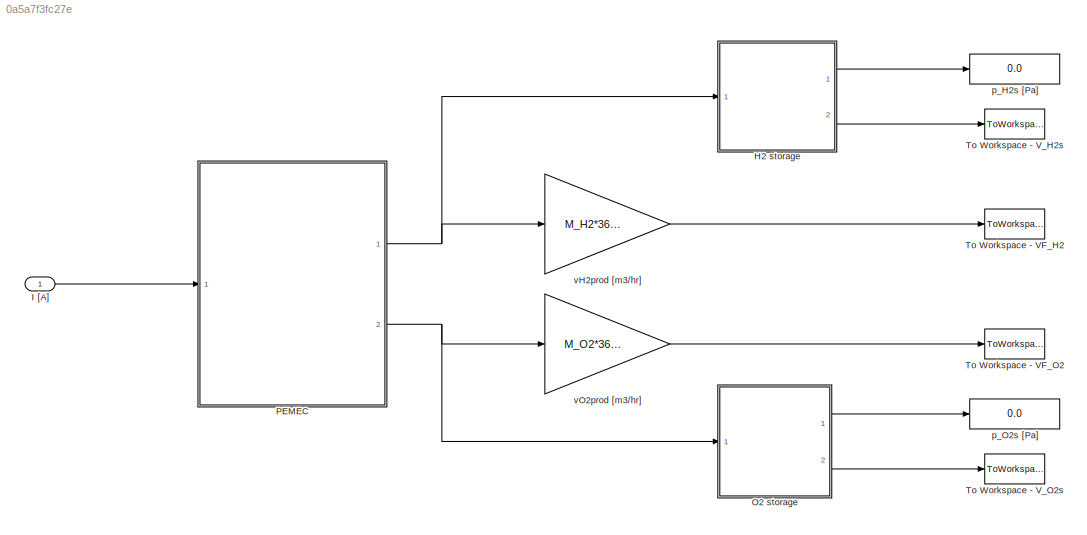
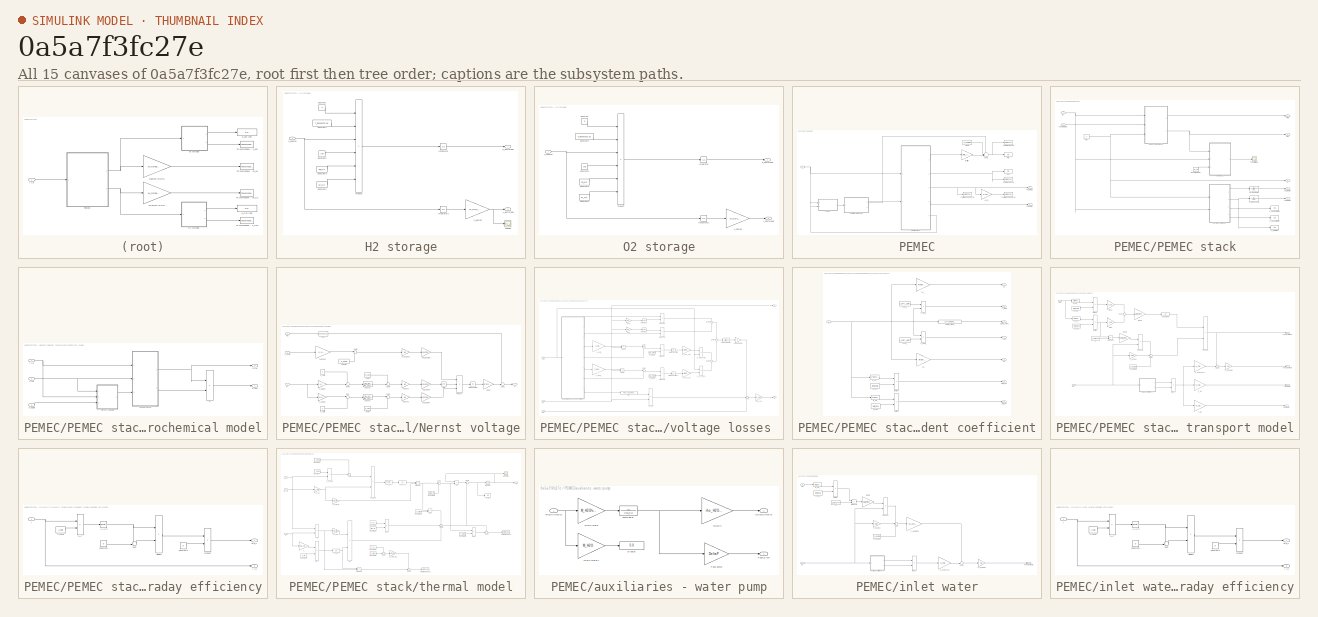
[diagram: thumbnail index - all 15 canvases of the model, root first then tree order]
MODEL slx_0a5a7f3fc27e
KIND model
CONFIG AbsTol = auto
CONFIG FixedStep = auto
CONFIG MaxStep = 1
CONFIG MinStep = 0.0001
CONFIG RelTol = 1e-3
CONFIG SampleTimeConstraint = Unconstrained
CONFIG Solver = VariableStepAuto
CONFIG SolverMode = SingleTasking
CONFIG SolverName = VariableStepAuto
CONFIG StartTime = 0.0
CONFIG StopTime = 1000
BLOCK [SubSystem] H2 storage
  Ports = [1, 2]
  RequestExecContextInheritance = off
  Variant = off
BLOCK [Constant] H2 storage/Constant
  Value = R
BLOCK [Constant] H2 storage/Constant1
  Value = T_amb+273.15
BLOCK [Constant] H2 storage/Constant2
  Value = zeta
BLOCK [Constant] H2 storage/Constant3
  Value = VS_H2
BLOCK [Constant] H2 storage/Constant4
  Value = M_H2
BLOCK [Integrator] H2 storage/Integrator
  InitialCondition = 101325
  Ports = [1, 1]
BLOCK [Integrator] H2 storage/Integrator1
  Ports = [1, 1]
BLOCK [Product] H2 storage/Product
  InputSameDT = off
  Inputs = ****//
  OutDataTypeStr = Inherit: Inherit via internal rule
  Ports = [6, 1]
  RndMeth = Floor
  SaturateOnIntegerOverflow = off
BLOCK [Scope] H2 storage/Scope3
  Ports = [1]
  ScopeSpecificationString = Simulink.scopes.TimeScopeBlockCfg('CurrentConfiguration', extmgr.ConfigurationSet(extmgr.Configuration('Core','General UI',true),extmgr.Configuration('Core','Source UI',true),extmgr.Configuration('Sources','WiredSimulink',true,'DataLoggingVariableName','ScopeData1'),extmgr.Configuration('Visuals','Time Domain',true,'SerializedDisplays',{struct('MinYLimReal','-0.02021','MaxYLimReal','0.18191','YLab...<+1421ch>
BLOCK [Gain] H2 storage/V_H2prod
  Gain = M_H2/v_H240
  OutDataTypeStr = Inherit: Inherit via internal rule
  ParamDataTypeStr = Inherit: Inherit via internal rule
  SaturateOnIntegerOverflow = off
BLOCK [Outport] H2 storage/V_H2storage
  IconDisplay = Port number
  Port = 2
BLOCK [Inport] H2 storage/n_H2prod
  IconDisplay = Port number
BLOCK [Outport] H2 storage/p_H2storage
  IconDisplay = Port number
BLOCK [Inport] I [A]
  IconDisplay = Port number
BLOCK [SubSystem] O2 storage
  Ports = [1, 2]
  RequestExecContextInheritance = off
  Variant = off
BLOCK [Constant] O2 storage/Constant
  Value = R
BLOCK [Constant] O2 storage/Constant1
  Value = T_amb+273.15
BLOCK [Constant] O2 storage/Constant2
  Value = zeta
BLOCK [Constant] O2 storage/Constant3
  Value = VS_O2
BLOCK [Constant] O2 storage/Constant4
  Value = M_O2
BLOCK [Integrator] O2 storage/Integrator
  InitialCondition = 101325
  Ports = [1, 1]
BLOCK [Integrator] O2 storage/Integrator1
  Ports = [1, 1]
BLOCK [Product] O2 storage/Product
  InputSameDT = off
  Inputs = ****//
  OutDataTypeStr = Inherit: Inherit via internal rule
  Ports = [6, 1]
  RndMeth = Floor
  SaturateOnIntegerOverflow = off
BLOCK [Gain] O2 storage/V_O2prod
  Gain = M_O2/v_O240
  OutDataTypeStr = Inherit: Inherit via internal rule
  ParamDataTypeStr = Inherit: Inherit via internal rule
  SaturateOnIntegerOverflow = off
BLOCK [Outport] O2 storage/V_O2storage
  IconDisplay = Port number
  Port = 2
BLOCK [Inport] O2 storage/n_O2prod
  IconDisplay = Port number
BLOCK [Outport] O2 storage/p_O2storage
  IconDisplay = Port number
BLOCK [SubSystem] PEMEC
  Ports = [1, 2]
  RequestExecContextInheritance = off
  Variant = off
BLOCK [Inport] PEMEC/I
  IconDisplay = Port number
BLOCK [Display] PEMEC/P [W]
  Decimation = 1
  Ports = [1]
BLOCK [Constant] PEMEC/PBOP
  Value = P_gamma
BLOCK [SubSystem] PEMEC/PEMEC stack
  Ports = [2, 5]
  RequestExecContextInheritance = off
  Variant = off
BLOCK [Inport] PEMEC/PEMEC stack/I [A]
  IconDisplay = Port number
BLOCK [Outport] PEMEC/PEMEC stack/P [W]
  IconDisplay = Port number
BLOCK [Outport] PEMEC/PEMEC stack/T
  IconDisplay = Port number
  Port = 5
BLOCK [Constant] PEMEC/PEMEC stack/T [K]
  Value = T
BLOCK [Scope] PEMEC/PEMEC stack/T evolution K
  Ports = [1]
  ScopeSpecificationString = Simulink.scopes.TimeScopeBlockCfg('CurrentConfiguration', extmgr.ConfigurationSet(extmgr.Configuration('Core','General UI',true),extmgr.Configuration('Core','Source UI',true),extmgr.Configuration('Sources','WiredSimulink',true,'DataLoggingVariableName','ScopeData1'),extmgr.Configuration('Visuals','Time Domain',true,'SerializedDisplays',{struct('MinYLimReal','19.62056','MaxYLimReal','73.41498','YLa...<+1378ch>
BLOCK [Outport] PEMEC/PEMEC stack/V [V]
  IconDisplay = Port number
  Port = 2
BLOCK [SubSystem] PEMEC/PEMEC stack/electrochemical model
  Ports = [3, 2]
  RequestExecContextInheritance = off
  Variant = off
BLOCK [Inport] PEMEC/PEMEC stack/electrochemical model/I [A]
  IconDisplay = Port number
BLOCK [SubSystem] PEMEC/PEMEC stack/electrochemical model/Nernst voltage
  Ports = [3, 1]
  RequestExecContextInheritance = off
  Variant = off
BLOCK [Outport] PEMEC/PEMEC stack/electrochemical model/Nernst voltage/E
  IconDisplay = Port number
BLOCK [Fcn] PEMEC/PEMEC stack/electrochemical model/Nernst voltage/E0(T)
  Expr = 1.5184-1.5421e-03*u+9.523e-05*u* log(u)+9.84e-08*u^2
BLOCK [Inport] PEMEC/PEMEC stack/electrochemical model/Nernst voltage/I [A]
  IconDisplay = Port number
  Port = 2
BLOCK [Math] PEMEC/PEMEC stack/electrochemical model/Nernst voltage/Math Function
  Operator = log
  Ports = [1, 1]
BLOCK [Product] PEMEC/PEMEC stack/electrochemical model/Nernst voltage/Product
  InputSameDT = off
  Inputs = /**
  OutDataTypeStr = Inherit: Inherit via internal rule
  Ports = [3, 1]
  RndMeth = Floor
  SaturateOnIntegerOverflow = off
BLOCK [Gain] PEMEC/PEMEC stack/electrochemical model/Nernst voltage/RT//2F
  Gain = R*T/(2*F)
  OutDataTypeStr = Inherit: Inherit via internal rule
  ParamDataTypeStr = Inherit: Inherit via internal rule
  SaturateOnIntegerOverflow = off
BLOCK [Sqrt] PEMEC/PEMEC stack/electrochemical model/Nernst voltage/Sqrt
BLOCK [Sum] PEMEC/PEMEC stack/electrochemical model/Nernst voltage/Sum
  IconShape = round
  InputSameDT = off
  Inputs = |++
  OutDataTypeStr = Inherit: Inherit via internal rule
  Ports = [2, 1]
  SaturateOnIntegerOverflow = off
BLOCK [Sum] PEMEC/PEMEC stack/electrochemical model/Nernst voltage/Sum1
  IconShape = round
  InputSameDT = off
  Inputs = ++|
  OutDataTypeStr = Inherit: Inherit via internal rule
  Ports = [2, 1]
  SaturateOnIntegerOverflow = off
BLOCK [Sum] PEMEC/PEMEC stack/electrochemical model/Nernst voltage/Sum2
  IconShape = round
  InputSameDT = off
  Inputs = ++|
  OutDataTypeStr = Inherit: Inherit via internal rule
  Ports = [2, 1]
  SaturateOnIntegerOverflow = off
BLOCK [Sum] PEMEC/PEMEC stack/electrochemical model/Nernst voltage/Sum3
  IconShape = round
  InputSameDT = off
  Inputs = ++|
  OutDataTypeStr = Inherit: Inherit via internal rule
  Ports = [2, 1]
  SaturateOnIntegerOverflow = off
BLOCK [Sum] PEMEC/PEMEC stack/electrochemical model/Nernst voltage/Sum4
  IconShape = round
  InputSameDT = off
  Inputs = |++
  OutDataTypeStr = Inherit: Inherit via internal rule
  Ports = [2, 1]
  SaturateOnIntegerOverflow = off
BLOCK [Sum] PEMEC/PEMEC stack/electrochemical model/Nernst voltage/Sum5
  IconShape = round
  InputSameDT = off
  Inputs = |++
  OutDataTypeStr = Inherit: Inherit via internal rule
  Ports = [2, 1]
  SaturateOnIntegerOverflow = off
BLOCK [Inport] PEMEC/PEMEC stack/electrochemical model/Nernst voltage/T [K]
  IconDisplay = Port number
BLOCK [Inport] PEMEC/PEMEC stack/electrochemical model/Nernst voltage/n_H2Oin
  IconDisplay = Port number
  Port = 3
BLOCK [Constant] PEMEC/PEMEC stack/electrochemical model/Nernst voltage/n_H2in
  Value = 0
BLOCK [Gain] PEMEC/PEMEC stack/electrochemical model/Nernst voltage/n_H2reac
  Gain = 2*K_r
  OutDataTypeStr = Inherit: Inherit via internal rule
  ParamDataTypeStr = Inherit: Inherit via internal rule
  SaturateOnIntegerOverflow = off
BLOCK [Constant] PEMEC/PEMEC stack/electrochemical model/Nernst voltage/n_O2in
  Value = 0
BLOCK [Gain] PEMEC/PEMEC stack/electrochemical model/Nernst voltage/n_O2reac
  Gain = K_r
  OutDataTypeStr = Inherit: Inherit via internal rule
  ParamDataTypeStr = Inherit: Inherit via internal rule
  SaturateOnIntegerOverflow = off
BLOCK [Gain] PEMEC/PEMEC stack/electrochemical model/Nernst voltage/pH2Oav [Pa]
  Gain = 101325
  OutDataTypeStr = Inherit: Inherit via internal rule
  ParamDataTypeStr = Inherit: Inherit via internal rule
  SaturateOnIntegerOverflow = off
BLOCK [Constant] PEMEC/PEMEC stack/electrochemical model/Nernst voltage/pH2Oin
  Value = p_H2O0
BLOCK [Gain] PEMEC/PEMEC stack/electrochemical model/Nernst voltage/pH2Oout
  Gain = (1 - U)/K_H2O
  OutDataTypeStr = Inherit: Inherit via internal rule
  ParamDataTypeStr = Inherit: Inherit via internal rule
  SaturateOnIntegerOverflow = off
BLOCK [Gain] PEMEC/PEMEC stack/electrochemical model/Nernst voltage/pH2av [Pa]
  Gain = 101325
  OutDataTypeStr = Inherit: Inherit via internal rule
  ParamDataTypeStr = Inherit: Inherit via internal rule
  SaturateOnIntegerOverflow = off
BLOCK [Gain] PEMEC/PEMEC stack/electrochemical model/Nernst voltage/pH2avg
  Gain = 0.5
  OutDataTypeStr = Inherit: Inherit via internal rule
  ParamDataTypeStr = Inherit: Inherit via internal rule
  SaturateOnIntegerOverflow = off
BLOCK [Constant] PEMEC/PEMEC stack/electrochemical model/Nernst voltage/pH2in
  Value = p_H20
BLOCK [TransferFcn] PEMEC/PEMEC stack/electrochemical model/Nernst voltage/pH2out
  ContinuousStateAttributes = 'p_H2'
  Denominator = [tau_H2 1]
  Numerator = [1/K_H2]
BLOCK [Gain] PEMEC/PEMEC stack/electrochemical model/Nernst voltage/pO2av [Pa]
  Gain = 101325
  OutDataTypeStr = Inherit: Inherit via internal rule
  ParamDataTypeStr = Inherit: Inherit via internal rule
  SaturateOnIntegerOverflow = off
BLOCK [Gain] PEMEC/PEMEC stack/electrochemical model/Nernst voltage/pO2avg
  Gain = 0.5
  OutDataTypeStr = Inherit: Inherit via internal rule
  ParamDataTypeStr = Inherit: Inherit via internal rule
  SaturateOnIntegerOverflow = off
BLOCK [Constant] PEMEC/PEMEC stack/electrochemical model/Nernst voltage/pO2in
  Value = p_O20
BLOCK [TransferFcn] PEMEC/PEMEC stack/electrochemical model/Nernst voltage/pO2out
  ContinuousStateAttributes = 'p_O2'
  Denominator = [tau_O2 1]
  Numerator = [1/K_O2]
BLOCK [Gain] PEMEC/PEMEC stack/electrochemical model/Nernst voltage/p_H2Oavg
  Gain = 0.5
  OutDataTypeStr = Inherit: Inherit via internal rule
  ParamDataTypeStr = Inherit: Inherit via internal rule
  SaturateOnIntegerOverflow = off
BLOCK [Product] PEMEC/PEMEC stack/electrochemical model/P
  InputSameDT = off
  OutDataTypeStr = Inherit: Inherit via internal rule
  Ports = [2, 1]
  RndMeth = Floor
  SaturateOnIntegerOverflow = off
BLOCK [Outport] PEMEC/PEMEC stack/electrochemical model/P [W]
  IconDisplay = Port number
BLOCK [Inport] PEMEC/PEMEC stack/electrochemical model/T [K]
  IconDisplay = Port number
  Port = 3
BLOCK [Outport] PEMEC/PEMEC stack/electrochemical model/V [V]
  IconDisplay = Port number
  Port = 2
BLOCK [Inport] PEMEC/PEMEC stack/electrochemical model/n_H2Oin
  IconDisplay = Port number
  Port = 2
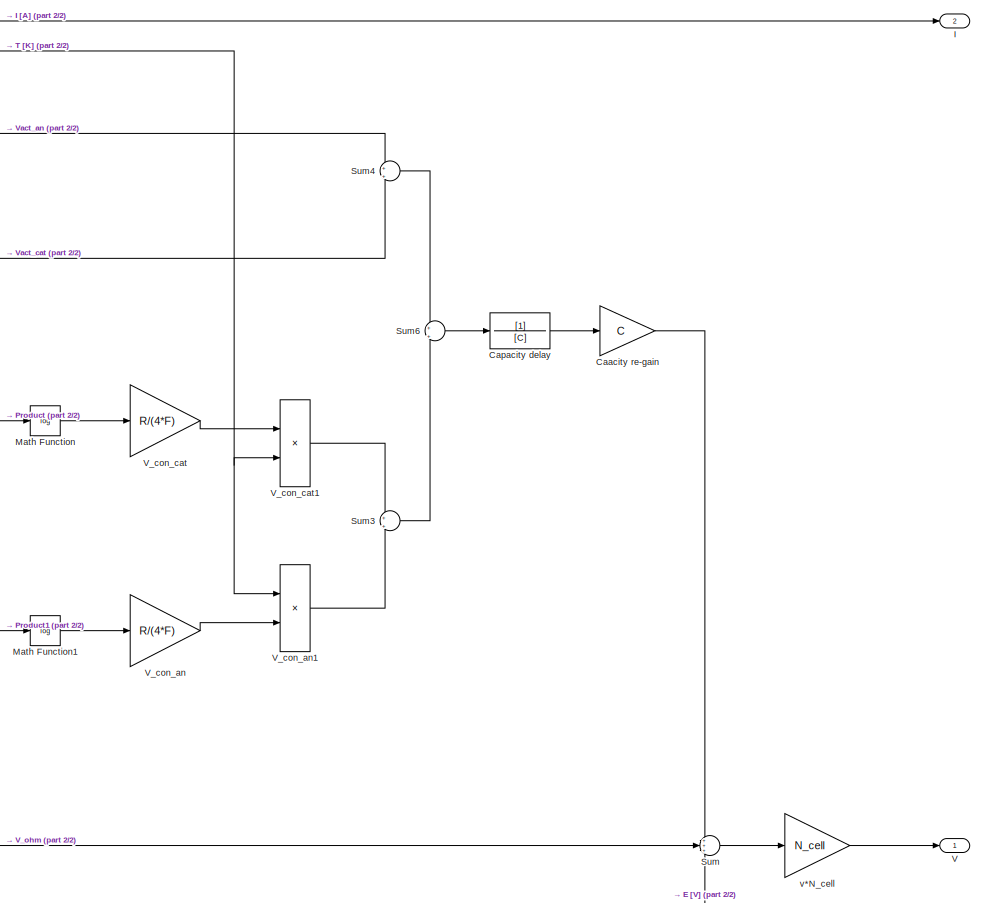
[diagram: PEMEC/PEMEC stack/electrochemical model/voltage losses  - part 1/2, right side, full height]
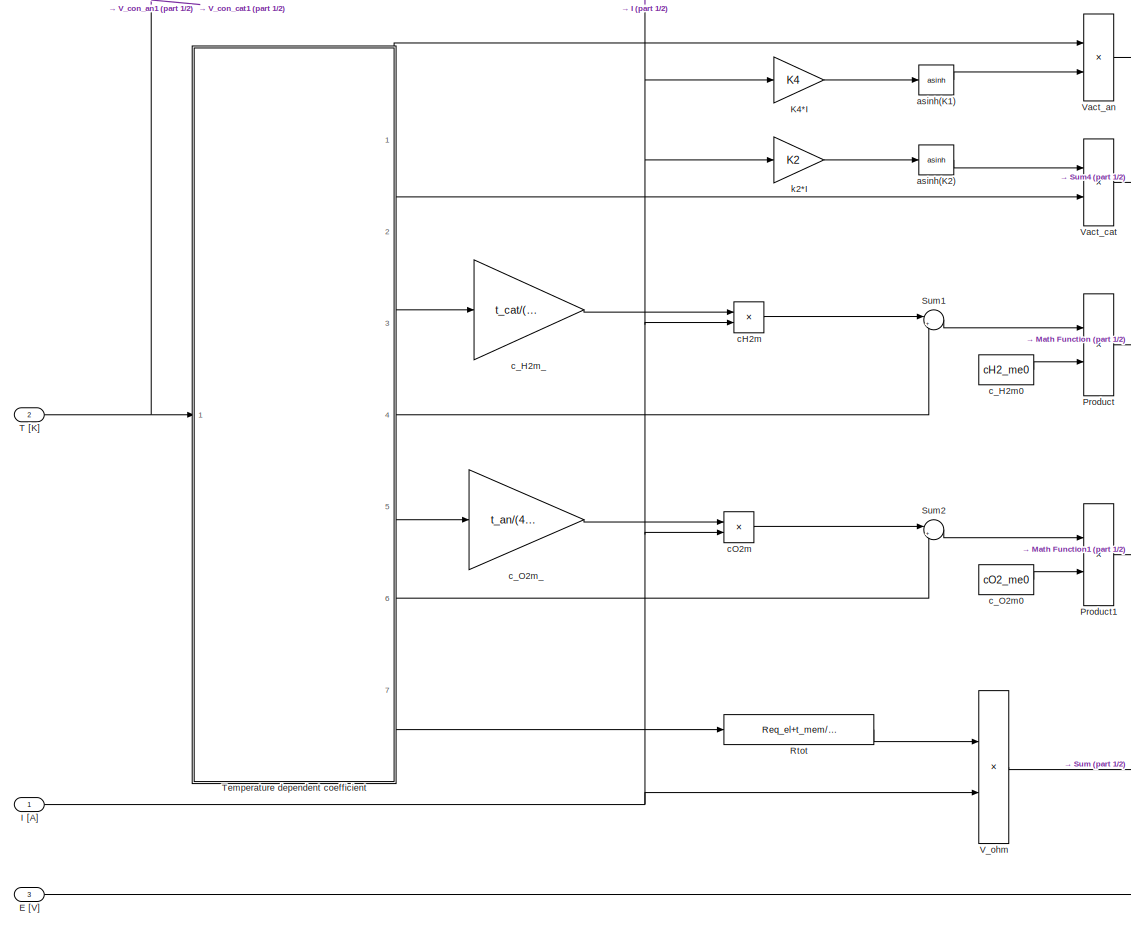
[diagram: PEMEC/PEMEC stack/electrochemical model/voltage losses  - part 2/2, left side, full height]
BLOCK [SubSystem] PEMEC/PEMEC stack/electrochemical model/voltage losses 
  Ports = [3, 2]
  RequestExecContextInheritance = off
  Variant = off
BLOCK [Gain] PEMEC/PEMEC stack/electrochemical model/voltage losses /Caacity re-gain
  Gain = C
  OutDataTypeStr = Inherit: Inherit via internal rule
  ParamDataTypeStr = Inherit: Inherit via internal rule
  SaturateOnIntegerOverflow = off
BLOCK [TransferFcn] PEMEC/PEMEC stack/electrochemical model/voltage losses /Capacity delay
  Denominator = [C]
BLOCK [Inport] PEMEC/PEMEC stack/electrochemical model/voltage losses /E [V]
  IconDisplay = Port number
  Port = 3
BLOCK [Outport] PEMEC/PEMEC stack/electrochemical model/voltage losses /I
  IconDisplay = Port number
  Port = 2
BLOCK [Inport] PEMEC/PEMEC stack/electrochemical model/voltage losses /I [A]
  IconDisplay = Port number
BLOCK [Gain] PEMEC/PEMEC stack/electrochemical model/voltage losses /K4*I
  Gain = K4
  OutDataTypeStr = Inherit: Inherit via internal rule
  ParamDataTypeStr = Inherit: Inherit via internal rule
  SaturateOnIntegerOverflow = off
BLOCK [Math] PEMEC/PEMEC stack/electrochemical model/voltage losses /Math Function
  Operator = log
  Ports = [1, 1]
BLOCK [Math] PEMEC/PEMEC stack/electrochemical model/voltage losses /Math Function1
  Operator = log
  Ports = [1, 1]
BLOCK [Product] PEMEC/PEMEC stack/electrochemical model/voltage losses /Product
  InputSameDT = off
  Inputs = */
  OutDataTypeStr = Inherit: Inherit via internal rule
  Ports = [2, 1]
  RndMeth = Floor
  SaturateOnIntegerOverflow = off
BLOCK [Product] PEMEC/PEMEC stack/electrochemical model/voltage losses /Product1
  InputSameDT = off
  Inputs = */
  OutDataTypeStr = Inherit: Inherit via internal rule
  Ports = [2, 1]
  RndMeth = Floor
  SaturateOnIntegerOverflow = off
BLOCK [Fcn] PEMEC/PEMEC stack/electrochemical model/voltage losses /Rtot
  Expr = Req_el+t_mem/(A_cell*u)
BLOCK [Sum] PEMEC/PEMEC stack/electrochemical model/voltage losses /Sum
  IconShape = round
  InputSameDT = off
  Inputs = +++
  OutDataTypeStr = Inherit: Inherit via internal rule
  Ports = [3, 1]
  SaturateOnIntegerOverflow = off
BLOCK [Sum] PEMEC/PEMEC stack/electrochemical model/voltage losses /Sum1
  IconShape = round
  InputSameDT = off
  Inputs = |++
  OutDataTypeStr = Inherit: Inherit via internal rule
  Ports = [2, 1]
  SaturateOnIntegerOverflow = off
BLOCK [Sum] PEMEC/PEMEC stack/electrochemical model/voltage losses /Sum2
  IconShape = round
  InputSameDT = off
  Inputs = |++
  OutDataTypeStr = Inherit: Inherit via internal rule
  Ports = [2, 1]
  SaturateOnIntegerOverflow = off
BLOCK [Sum] PEMEC/PEMEC stack/electrochemical model/voltage losses /Sum3
  IconShape = round
  InputSameDT = off
  Inputs = +|+
  OutDataTypeStr = Inherit: Inherit via internal rule
  Ports = [2, 1]
  SaturateOnIntegerOverflow = off
BLOCK [Sum] PEMEC/PEMEC stack/electrochemical model/voltage losses /Sum4
  IconShape = round
  InputSameDT = off
  Inputs = +|+
  OutDataTypeStr = Inherit: Inherit via internal rule
  Ports = [2, 1]
  SaturateOnIntegerOverflow = off
BLOCK [Sum] PEMEC/PEMEC stack/electrochemical model/voltage losses /Sum6
  IconShape = round
  InputSameDT = off
  Inputs = +|+
  OutDataTypeStr = Inherit: Inherit via internal rule
  Ports = [2, 1]
  SaturateOnIntegerOverflow = off
BLOCK [Inport] PEMEC/PEMEC stack/electrochemical model/voltage losses /T [K]
  IconDisplay = Port number
  Port = 2
BLOCK [SubSystem] PEMEC/PEMEC stack/electrochemical model/voltage losses /Temperature dependent coefficient
  Ports = [1, 7]
  RequestExecContextInheritance = off
  Variant = off
BLOCK [Constant] PEMEC/PEMEC stack/electrochemical model/voltage losses /Temperature dependent coefficient/D_H20
  Value = Deff_cat0
BLOCK [Fcn] PEMEC/PEMEC stack/electrochemical model/voltage losses /Temperature dependent coefficient/D_H2_
  Expr = a * ((u / sqrt(12.8 * 218.3)) ^ b)
BLOCK [Constant] PEMEC/PEMEC stack/electrochemical model/voltage losses /Temperature dependent coefficient/D_O20
  Value = Deff_an0
BLOCK [Fcn] PEMEC/PEMEC stack/electrochemical model/voltage losses /Temperature dependent coefficient/D_O2_
  Expr = a * ((u / sqrt(49.7 * 218.3)) ^ b)
BLOCK [Product] PEMEC/PEMEC stack/electrochemical model/voltage losses /Temperature dependent coefficient/Deff an
  InputSameDT = off
  OutDataTypeStr = Inherit: Inherit via internal rule
  Ports = [2, 1]
  RndMeth = Floor
  SaturateOnIntegerOverflow = off
BLOCK [Product] PEMEC/PEMEC stack/electrochemical model/voltage losses /Temperature dependent coefficient/Deff cat
  InputSameDT = off
  OutDataTypeStr = Inherit: Inherit via internal rule
  Ports = [2, 1]
  RndMeth = Floor
  SaturateOnIntegerOverflow = off
BLOCK [Outport] PEMEC/PEMEC stack/electrochemical model/voltage losses /Temperature dependent coefficient/Deff_an
  IconDisplay = Port number
  Port = 5
BLOCK [Outport] PEMEC/PEMEC stack/electrochemical model/voltage losses /Temperature dependent coefficient/Deff_cat
  IconDisplay = Port number
  Port = 3
BLOCK [Outport] PEMEC/PEMEC stack/electrochemical model/voltage losses /Temperature dependent coefficient/K1
  IconDisplay = Port number
  Port = 2
BLOCK [Gain] PEMEC/PEMEC stack/electrochemical model/voltage losses /Temperature dependent coefficient/K1_
  Gain = R/(alpha_an*F)
  OutDataTypeStr = Inherit: Inherit via internal rule
  ParamDataTypeStr = Inherit: Inherit via internal rule
  SaturateOnIntegerOverflow = off
BLOCK [Outport] PEMEC/PEMEC stack/electrochemical model/voltage losses /Temperature dependent coefficient/K3
  IconDisplay = Port number
BLOCK [Gain] PEMEC/PEMEC stack/electrochemical model/voltage losses /Temperature dependent coefficient/K3_
  Gain = R/(alpha_cat*F)
  OutDataTypeStr = Inherit: Inherit via internal rule
  ParamDataTypeStr = Inherit: Inherit via internal rule
  SaturateOnIntegerOverflow = off
BLOCK [Inport] PEMEC/PEMEC stack/electrochemical model/voltage losses /Temperature dependent coefficient/T
  IconDisplay = Port number
BLOCK [Outport] PEMEC/PEMEC stack/electrochemical model/voltage losses /Temperature dependent coefficient/cH2m
  IconDisplay = Port number
  Port = 4
BLOCK [Constant] PEMEC/PEMEC stack/electrochemical model/voltage losses /Temperature dependent coefficient/cH2m_
  Value = p_cat*y_H2/R
BLOCK [Constant] PEMEC/PEMEC stack/electrochemical model/voltage losses /Temperature dependent coefficient/cO2m_
  Value = p_an*y_O2/R
BLOCK [Product] PEMEC/PEMEC stack/electrochemical model/voltage losses /Temperature dependent coefficient/c_H2m_
  InputSameDT = off
  Inputs = /*
  OutDataTypeStr = Inherit: Inherit via internal rule
  Ports = [2, 1]
  RndMeth = Floor
  SaturateOnIntegerOverflow = off
BLOCK [Outport] PEMEC/PEMEC stack/electrochemical model/voltage losses /Temperature dependent coefficient/c_O2m
  IconDisplay = Port number
  Port = 6
BLOCK [Product] PEMEC/PEMEC stack/electrochemical model/voltage losses /Temperature dependent coefficient/c_O2m_
  InputSameDT = off
  Inputs = */
  OutDataTypeStr = Inherit: Inherit via internal rule
  Ports = [2, 1]
  RndMeth = Floor
  SaturateOnIntegerOverflow = off
BLOCK [Outport] PEMEC/PEMEC stack/electrochemical model/voltage losses /Temperature dependent coefficient/sigma_mem
  IconDisplay = Port number
  Port = 7
BLOCK [Fcn] PEMEC/PEMEC stack/electrochemical model/voltage losses /Temperature dependent coefficient/sigma_mem_
  Expr = 16*exp(-Epro/R*(1/u-1/T_ref))
BLOCK [Outport] PEMEC/PEMEC stack/electrochemical model/voltage losses /V
  IconDisplay = Port number
BLOCK [Gain] PEMEC/PEMEC stack/electrochemical model/voltage losses /V_con_an
  Gain = R/(4*F)
  OutDataTypeStr = Inherit: Inherit via internal rule
  ParamDataTypeStr = Inherit: Inherit via internal rule
  SaturateOnIntegerOverflow = off
BLOCK [Product] PEMEC/PEMEC stack/electrochemical model/voltage losses /V_con_an1
  InputSameDT = off
  OutDataTypeStr = Inherit: Inherit via internal rule
  Ports = [2, 1]
  RndMeth = Floor
  SaturateOnIntegerOverflow = off
BLOCK [Gain] PEMEC/PEMEC stack/electrochemical model/voltage losses /V_con_cat
  Gain = R/(4*F)
  OutDataTypeStr = Inherit: Inherit via internal rule
  ParamDataTypeStr = Inherit: Inherit via internal rule
  SaturateOnIntegerOverflow = off
BLOCK [Product] PEMEC/PEMEC stack/electrochemical model/voltage losses /V_con_cat1
  InputSameDT = off
  OutDataTypeStr = Inherit: Inherit via internal rule
  Ports = [2, 1]
  RndMeth = Floor
  SaturateOnIntegerOverflow = off
BLOCK [Product] PEMEC/PEMEC stack/electrochemical model/voltage losses /V_ohm
  InputSameDT = off
  OutDataTypeStr = Inherit: Inherit via internal rule
  Ports = [2, 1]
  RndMeth = Floor
  SaturateOnIntegerOverflow = off
BLOCK [Product] PEMEC/PEMEC stack/electrochemical model/voltage losses /Vact_an
  InputSameDT = off
  OutDataTypeStr = Inherit: Inherit via internal rule
  Ports = [2, 1]
  RndMeth = Floor
  SaturateOnIntegerOverflow = off
BLOCK [Product] PEMEC/PEMEC stack/electrochemical model/voltage losses /Vact_cat
  InputSameDT = off
  OutDataTypeStr = Inherit: Inherit via internal rule
  Ports = [2, 1]
  RndMeth = Floor
  SaturateOnIntegerOverflow = off
BLOCK [Trigonometry] PEMEC/PEMEC stack/electrochemical model/voltage losses /asinh(K1)
  Operator = asinh
  Ports = [1, 1]
BLOCK [Trigonometry] PEMEC/PEMEC stack/electrochemical model/voltage losses /asinh(K2)
  Operator = asinh
  Ports = [1, 1]
BLOCK [Product] PEMEC/PEMEC stack/electrochemical model/voltage losses /cH2m
  InputSameDT = off
  OutDataTypeStr = Inherit: Inherit via internal rule
  Ports = [2, 1]
  RndMeth = Floor
  SaturateOnIntegerOverflow = off
BLOCK [Product] PEMEC/PEMEC stack/electrochemical model/voltage losses /cO2m
  InputSameDT = off
  OutDataTypeStr = Inherit: Inherit via internal rule
  Ports = [2, 1]
  RndMeth = Floor
  SaturateOnIntegerOverflow = off
BLOCK [Constant] PEMEC/PEMEC stack/electrochemical model/voltage losses /c_H2m0
  Value = cH2_me0
BLOCK [Gain] PEMEC/PEMEC stack/electrochemical model/voltage losses /c_H2m_
  Gain = t_cat/(4*F*A_cell)
  OutDataTypeStr = Inherit: Inherit via internal rule
  ParamDataTypeStr = Inherit: Inherit via internal rule
  SaturateOnIntegerOverflow = off
BLOCK [Constant] PEMEC/PEMEC stack/electrochemical model/voltage losses /c_O2m0
  Value = cO2_me0
BLOCK [Gain] PEMEC/PEMEC stack/electrochemical model/voltage losses /c_O2m_
  Gain = t_an/(4*F*A_cell)
  OutDataTypeStr = Inherit: Inherit via internal rule
  ParamDataTypeStr = Inherit: Inherit via internal rule
  SaturateOnIntegerOverflow = off
BLOCK [Gain] PEMEC/PEMEC stack/electrochemical model/voltage losses /k2*I
  Gain = K2
  OutDataTypeStr = Inherit: Inherit via internal rule
  ParamDataTypeStr = Inherit: Inherit via internal rule
  SaturateOnIntegerOverflow = off
BLOCK [Gain] PEMEC/PEMEC stack/electrochemical model/voltage losses /v*N_cell
  Gain = N_cell
  OutDataTypeStr = Inherit: Inherit via internal rule
  ParamDataTypeStr = Inherit: Inherit via internal rule
  SaturateOnIntegerOverflow = off
BLOCK [TransferFcn] PEMEC/PEMEC stack/hydrogen delay
  Denominator = [4 1]
BLOCK [Constant] PEMEC/PEMEC stack/m cooling [kg//s]
  Value = m_cw
BLOCK [SubSystem] PEMEC/PEMEC stack/mass transport model
  Ports = [2, 4]
  RequestExecContextInheritance = off
  Variant = off
BLOCK [Constant] PEMEC/PEMEC stack/mass transport model/C
  Value = t_an/(2*F)
BLOCK [Constant] PEMEC/PEMEC stack/mass transport model/D_H20
  Value = Deff_cat0
BLOCK [Fcn] PEMEC/PEMEC stack/mass transport model/D_H2_
  Expr = a * ((u / sqrt(12.8 * 218.3)) ^ b)
BLOCK [Constant] PEMEC/PEMEC stack/mass transport model/D_O20
  Value = Deff_an0
BLOCK [Fcn] PEMEC/PEMEC stack/mass transport model/D_O2_
  Expr = a * ((u / sqrt(49.7 * 218.3)) ^ b)
BLOCK [Product] PEMEC/PEMEC stack/mass transport model/Deff an
  InputSameDT = off
  OutDataTypeStr = Inherit: Inherit via internal rule
  Ports = [2, 1]
  RndMeth = Floor
  SaturateOnIntegerOverflow = off
BLOCK [Product] PEMEC/PEMEC stack/mass transport model/Deff cat
  InputSameDT = off
  OutDataTypeStr = Inherit: Inherit via internal rule
  Ports = [2, 1]
  RndMeth = Floor
  SaturateOnIntegerOverflow = off
BLOCK [Gain] PEMEC/PEMEC stack/mass transport model/Dt an
  Gain = t_an
  OutDataTypeStr = Inherit: Inherit via internal rule
  ParamDataTypeStr = Inherit: Inherit via internal rule
  SaturateOnIntegerOverflow = off
BLOCK [Gain] PEMEC/PEMEC stack/mass transport model/Dt cat
  Gain = t_cat
  OutDataTypeStr = Inherit: Inherit via internal rule
  ParamDataTypeStr = Inherit: Inherit via internal rule
  SaturateOnIntegerOverflow = off
BLOCK [Gain] PEMEC/PEMEC stack/mass transport model/Dt cat1
  Gain = Dw/t_mem
  OutDataTypeStr = Inherit: Inherit via internal rule
  ParamDataTypeStr = Inherit: Inherit via internal rule
  SaturateOnIntegerOverflow = off
BLOCK [Gain] PEMEC/PEMEC stack/mass transport model/Dt cat2
  Gain = Dw/t_mem
  OutDataTypeStr = Inherit: Inherit via internal rule
  ParamDataTypeStr = Inherit: Inherit via internal rule
  SaturateOnIntegerOverflow = off
BLOCK [SubSystem] PEMEC/PEMEC stack/mass transport model/Faraday efficiency
  Ports = [1, 2]
  RequestExecContextInheritance = off
  Variant = off
BLOCK [Math] PEMEC/PEMEC stack/mass transport model/Faraday efficiency/(I//A)^2
  Operator = magnitude^2
  Ports = [1, 1]
BLOCK [Constant] PEMEC/PEMEC stack/mass transport model/Faraday efficiency/A [m2]
  Value = A_cell
BLOCK [Constant] PEMEC/PEMEC stack/mass transport model/Faraday efficiency/Constant1
  Value = f1
BLOCK [Constant] PEMEC/PEMEC stack/mass transport model/Faraday efficiency/Constant2
  Value = f2
BLOCK [Product] PEMEC/PEMEC stack/mass transport model/Faraday efficiency/Divide1
  InputSameDT = off
  Inputs = */
  OutDataTypeStr = Inherit: Inherit via internal rule
  Ports = [2, 1]
  RndMeth = Floor
  SaturateOnIntegerOverflow = off
BLOCK [Inport] PEMEC/PEMEC stack/mass transport model/Faraday efficiency/I
  IconDisplay = Port number
BLOCK [Outport] PEMEC/PEMEC stack/mass transport model/Faraday efficiency/I [A]
  IconDisplay = Port number
  Port = 2
BLOCK [Product] PEMEC/PEMEC stack/mass transport model/Faraday efficiency/I//A
  InputSameDT = off
  Inputs = */
  OutDataTypeStr = Inherit: Inherit via internal rule
  Ports = [2, 1]
  RndMeth = Floor
  SaturateOnIntegerOverflow = off
BLOCK [Product] PEMEC/PEMEC stack/mass transport model/Faraday efficiency/Product
  InputSameDT = off
  OutDataTypeStr = Inherit: Inherit via internal rule
  Ports = [2, 1]
  RndMeth = Floor
  SaturateOnIntegerOverflow = off
BLOCK [Sum] PEMEC/PEMEC stack/mass transport model/Faraday efficiency/Sum
  IconShape = round
  InputSameDT = off
  Inputs = ++|
  OutDataTypeStr = Inherit: Inherit via internal rule
  Ports = [2, 1]
  SaturateOnIntegerOverflow = off
BLOCK [Outport] PEMEC/PEMEC stack/mass transport model/Faraday efficiency/eta_F
  IconDisplay = Port number
BLOCK [Inport] PEMEC/PEMEC stack/mass transport model/I [A]
  IconDisplay = Port number
  Port = 2
BLOCK [Product] PEMEC/PEMEC stack/mass transport model/I*eta_F
  InputSameDT = off
  OutDataTypeStr = Inherit: Inherit via internal rule
  Ports = [2, 1]
  RndMeth = Floor
  SaturateOnIntegerOverflow = off
BLOCK [Product] PEMEC/PEMEC stack/mass transport model/Product1
  InputSameDT = off
  Inputs = /*
  OutDataTypeStr = Inherit: Inherit via internal rule
  Ports = [2, 1]
  RndMeth = Floor
  SaturateOnIntegerOverflow = off
BLOCK [Product] PEMEC/PEMEC stack/mass transport model/Product2
  InputSameDT = off
  OutDataTypeStr = Inherit: Inherit via internal rule
  Ports = [2, 1]
  RndMeth = Floor
  SaturateOnIntegerOverflow = off
BLOCK [Product] PEMEC/PEMEC stack/mass transport model/Product3
  InputSameDT = off
  OutDataTypeStr = Inherit: Inherit via internal rule
  Ports = [2, 1]
  RndMeth = Floor
  SaturateOnIntegerOverflow = off
BLOCK [Sum] PEMEC/PEMEC stack/mass transport model/Sum
  IconShape = round
  InputSameDT = off
  Inputs = ++-
  OutDataTypeStr = Inherit: Inherit via internal rule
  Ports = [3, 1]
  SaturateOnIntegerOverflow = off
BLOCK [Sum] PEMEC/PEMEC stack/mass transport model/Sum1
  IconShape = round
  InputSameDT = off
  Inputs = +|+
  OutDataTypeStr = Inherit: Inherit via internal rule
  Ports = [2, 1]
  SaturateOnIntegerOverflow = off
BLOCK [Sum] PEMEC/PEMEC stack/mass transport model/Sum3
  IconShape = round
  InputSameDT = off
  Inputs = ++|
  OutDataTypeStr = Inherit: Inherit via internal rule
  Ports = [2, 1]
  SaturateOnIntegerOverflow = off
BLOCK [Inport] PEMEC/PEMEC stack/mass transport model/T [K]
  IconDisplay = Port number
BLOCK [Outport] PEMEC/PEMEC stack/mass transport model/nH2 [mol//s]
  IconDisplay = Port number
  Port = 2
BLOCK [Outport] PEMEC/PEMEC stack/mass transport model/nH2Oan [mol//s]
  IconDisplay = Port number
  Port = 3
BLOCK [Outport] PEMEC/PEMEC stack/mass transport model/nH2Ocat [mol//s]
  IconDisplay = Port number
  Port = 4
BLOCK [Fcn] PEMEC/PEMEC stack/mass transport model/nH2Omem
  Expr = 1-u
BLOCK [Outport] PEMEC/PEMEC stack/mass transport model/nO2 [mol//s]
  IconDisplay = Port number
BLOCK [Gain] PEMEC/PEMEC stack/mass transport model/n_H2
  Gain = N_cell/(2*F)
  OutDataTypeStr = Inherit: Inherit via internal rule
  ParamDataTypeStr = Inherit: Inherit via internal rule
  SaturateOnIntegerOverflow = off
BLOCK [Gain] PEMEC/PEMEC stack/mass transport model/n_H2Oanin
  Gain = 1/U
  OutDataTypeStr = Inherit: Inherit via internal rule
  ParamDataTypeStr = Inherit: Inherit via internal rule
  SaturateOnIntegerOverflow = off
BLOCK [Gain] PEMEC/PEMEC stack/mass transport model/n_H2Ocons1
  Gain = N_cell/(2*F)
  OutDataTypeStr = Inherit: Inherit via internal rule
  ParamDataTypeStr = Inherit: Inherit via internal rule
  SaturateOnIntegerOverflow = off
BLOCK [Gain] PEMEC/PEMEC stack/mass transport model/n_H2Oeo
  Gain = nd/F
  OutDataTypeStr = Inherit: Inherit via internal rule
  ParamDataTypeStr = Inherit: Inherit via internal rule
  SaturateOnIntegerOverflow = off
BLOCK [Constant] PEMEC/PEMEC stack/mass transport model/n_H2Opg
  Value = n_H2Opg
BLOCK [Gain] PEMEC/PEMEC stack/mass transport model/n_O2
  Gain = N_cell/(4*F)
  OutDataTypeStr = Inherit: Inherit via internal rule
  ParamDataTypeStr = Inherit: Inherit via internal rule
  SaturateOnIntegerOverflow = off
BLOCK [Outport] PEMEC/PEMEC stack/nH2 [mol//s]
  IconDisplay = Port number
  Port = 3
BLOCK [Inport] PEMEC/PEMEC stack/nH2Oin [mol//s]
  IconDisplay = Port number
  Port = 2
BLOCK [Outport] PEMEC/PEMEC stack/nO2 [mol//s]
  IconDisplay = Port number
  Port = 4
BLOCK [TransferFcn] PEMEC/PEMEC stack/oxygen delay
  Denominator = [4 1]
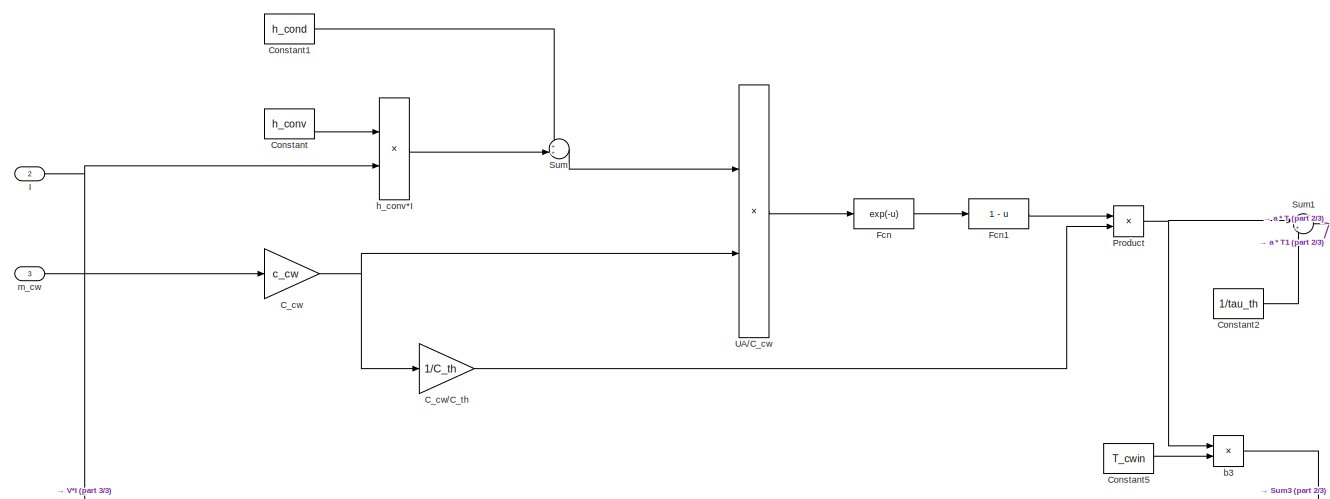
[diagram: PEMEC/PEMEC stack/thermal model - part 1/3, top center region]
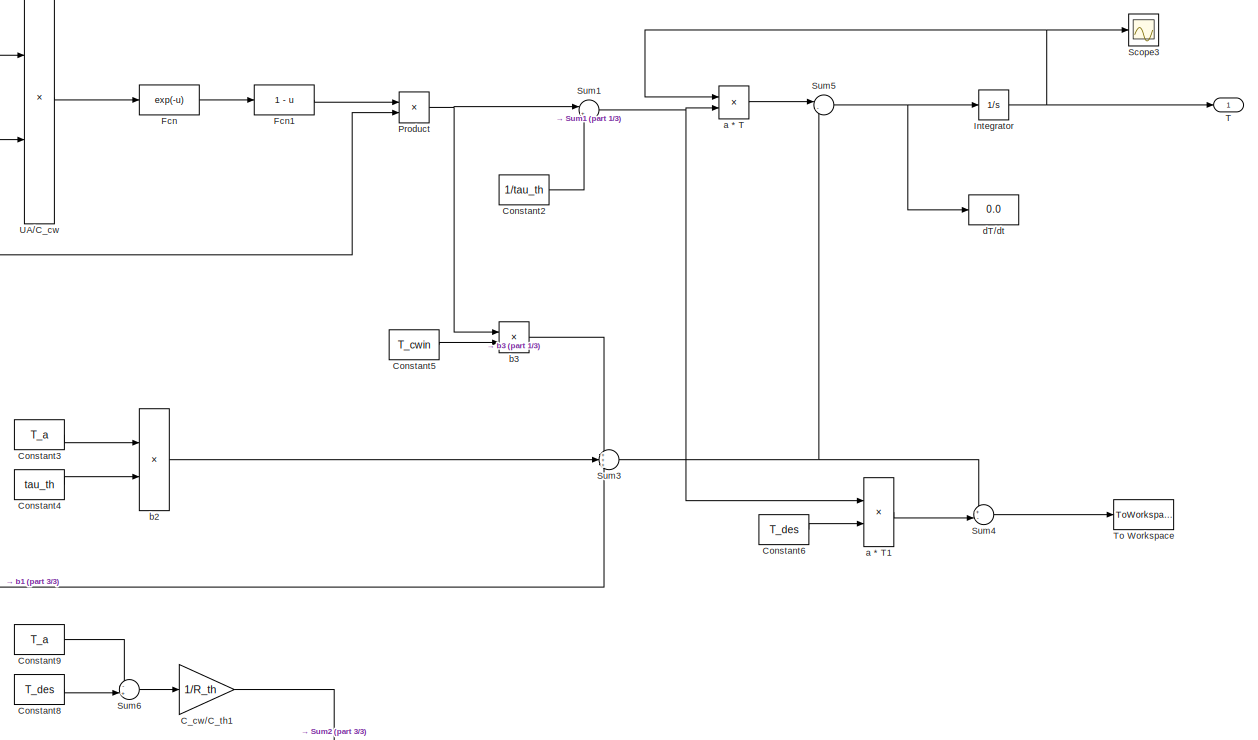
[diagram: PEMEC/PEMEC stack/thermal model - part 2/3, right side, full height]
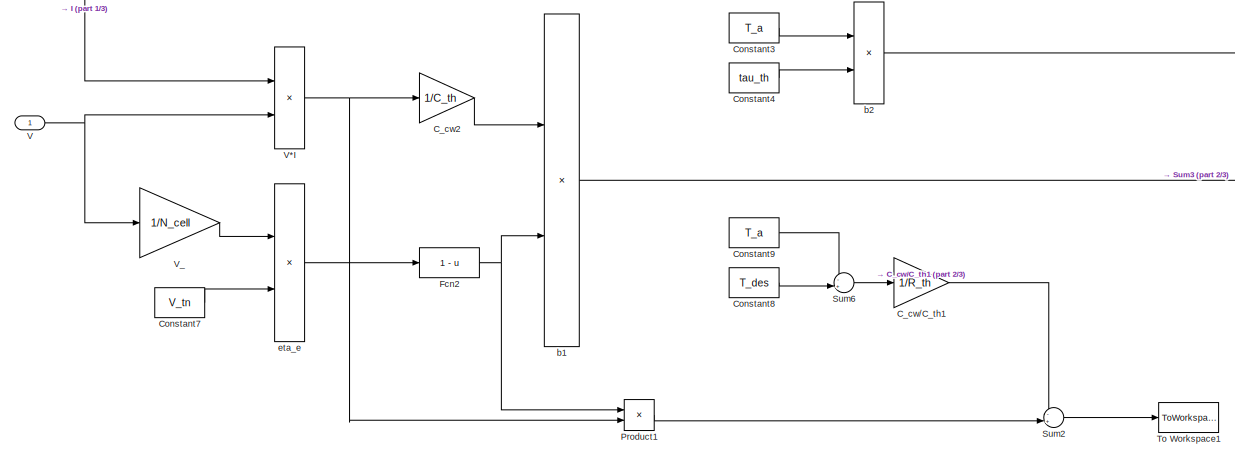
[diagram: PEMEC/PEMEC stack/thermal model - part 3/3, bottom left region]
BLOCK [SubSystem] PEMEC/PEMEC stack/thermal model
  Ports = [3, 1]
  RequestExecContextInheritance = off
  Variant = off
BLOCK [Gain] PEMEC/PEMEC stack/thermal model/C_cw
  Gain = c_cw
  OutDataTypeStr = Inherit: Inherit via internal rule
  ParamDataTypeStr = Inherit: Inherit via internal rule
  SaturateOnIntegerOverflow = off
BLOCK [Gain] PEMEC/PEMEC stack/thermal model/C_cw//C_th
  Gain = 1/C_th
  OutDataTypeStr = Inherit: Inherit via internal rule
  ParamDataTypeStr = Inherit: Inherit via internal rule
  SaturateOnIntegerOverflow = off
BLOCK [Gain] PEMEC/PEMEC stack/thermal model/C_cw//C_th1
  Gain = 1/R_th
  OutDataTypeStr = Inherit: Inherit via internal rule
  ParamDataTypeStr = Inherit: Inherit via internal rule
  SaturateOnIntegerOverflow = off
BLOCK [Gain] PEMEC/PEMEC stack/thermal model/C_cw2
  Gain = 1/C_th
  OutDataTypeStr = Inherit: Inherit via internal rule
  ParamDataTypeStr = Inherit: Inherit via internal rule
  SaturateOnIntegerOverflow = off
BLOCK [Constant] PEMEC/PEMEC stack/thermal model/Constant
  Value = h_conv
BLOCK [Constant] PEMEC/PEMEC stack/thermal model/Constant1
  Value = h_cond
BLOCK [Constant] PEMEC/PEMEC stack/thermal model/Constant2
  Value = 1/tau_th
BLOCK [Constant] PEMEC/PEMEC stack/thermal model/Constant3
  Value = T_a
BLOCK [Constant] PEMEC/PEMEC stack/thermal model/Constant4
  Value = tau_th
BLOCK [Constant] PEMEC/PEMEC stack/thermal model/Constant5
  Value = T_cwin
BLOCK [Constant] PEMEC/PEMEC stack/thermal model/Constant6
  Value = T_des
BLOCK [Constant] PEMEC/PEMEC stack/thermal model/Constant7
  Value = V_tn
BLOCK [Constant] PEMEC/PEMEC stack/thermal model/Constant8
  Value = T_des
BLOCK [Constant] PEMEC/PEMEC stack/thermal model/Constant9
  Value = T_a
BLOCK [Fcn] PEMEC/PEMEC stack/thermal model/Fcn
  Expr = exp(-u)
BLOCK [Fcn] PEMEC/PEMEC stack/thermal model/Fcn1
  Expr = 1 - u
BLOCK [Fcn] PEMEC/PEMEC stack/thermal model/Fcn2
  Expr = 1 - u
BLOCK [Inport] PEMEC/PEMEC stack/thermal model/I
  IconDisplay = Port number
  Port = 2
BLOCK [Integrator] PEMEC/PEMEC stack/thermal model/Integrator
  InitialCondition = T0
  Ports = [1, 1]
BLOCK [Product] PEMEC/PEMEC stack/thermal model/Product
  InputSameDT = off
  OutDataTypeStr = Inherit: Inherit via internal rule
  Ports = [2, 1]
  RndMeth = Floor
  SaturateOnIntegerOverflow = off
BLOCK [Product] PEMEC/PEMEC stack/thermal model/Product1
  InputSameDT = off
  OutDataTypeStr = Inherit: Inherit via internal rule
  Ports = [2, 1]
  RndMeth = Floor
  SaturateOnIntegerOverflow = off
BLOCK [Scope] PEMEC/PEMEC stack/thermal model/Scope3
  Ports = [1]
  ScopeSpecificationString = Simulink.scopes.TimeScopeBlockCfg('CurrentConfiguration', extmgr.ConfigurationSet(extmgr.Configuration('Core','General UI',true),extmgr.Configuration('Core','Source UI',true),extmgr.Configuration('Sources','WiredSimulink',true,'DataLoggingVariableName','ScopeData1'),extmgr.Configuration('Visuals','Time Domain',true,'SerializedDisplays',{struct('MinYLimReal','21.45421','MaxYLimReal','56.91208','YLa...<+1429ch>
BLOCK [Sum] PEMEC/PEMEC stack/thermal model/Sum
  IconShape = round
  InputSameDT = off
  Inputs = ++|
  OutDataTypeStr = Inherit: Inherit via internal rule
  Ports = [2, 1]
  SaturateOnIntegerOverflow = off
BLOCK [Sum] PEMEC/PEMEC stack/thermal model/Sum1
  IconShape = round
  InputSameDT = off
  Inputs = |++
  OutDataTypeStr = Inherit: Inherit via internal rule
  Ports = [2, 1]
  SaturateOnIntegerOverflow = off
BLOCK [Sum] PEMEC/PEMEC stack/thermal model/Sum2
  IconShape = round
  InputSameDT = off
  Inputs = -+|
  OutDataTypeStr = Inherit: Inherit via internal rule
  Ports = [2, 1]
  SaturateOnIntegerOverflow = off
BLOCK [Sum] PEMEC/PEMEC stack/thermal model/Sum3
  IconShape = round
  InputSameDT = off
  Inputs = +++
  OutDataTypeStr = Inherit: Inherit via internal rule
  Ports = [3, 1]
  SaturateOnIntegerOverflow = off
BLOCK [Sum] PEMEC/PEMEC stack/thermal model/Sum4
  IconShape = round
  InputSameDT = off
  Inputs = +-|
  OutDataTypeStr = Inherit: Inherit via internal rule
  Ports = [2, 1]
  SaturateOnIntegerOverflow = off
BLOCK [Sum] PEMEC/PEMEC stack/thermal model/Sum5
  IconShape = round
  InputSameDT = off
  Inputs = |-+
  OutDataTypeStr = Inherit: Inherit via internal rule
  Ports = [2, 1]
  SaturateOnIntegerOverflow = off
BLOCK [Sum] PEMEC/PEMEC stack/thermal model/Sum6
  IconShape = round
  InputSameDT = off
  Inputs = -+|
  OutDataTypeStr = Inherit: Inherit via internal rule
  Ports = [2, 1]
  SaturateOnIntegerOverflow = off
BLOCK [Outport] PEMEC/PEMEC stack/thermal model/T
  IconDisplay = Port number
BLOCK [ToWorkspace] PEMEC/PEMEC stack/thermal model/To Workspace
  FixptAsFi = on
  MaxDataPoints = inf
  Ports = [1]
  SampleTime = -1
  Save2DSignal = 3-D array (concatenate along third dimension)
  SaveFormat = Timeseries
  VariableName = dTdt
BLOCK [ToWorkspace] PEMEC/PEMEC stack/thermal model/To Workspace1
  FixptAsFi = on
  MaxDataPoints = inf
  Ports = [1]
  SampleTime = -1
  Save2DSignal = 3-D array (concatenate along third dimension)
  SaveFormat = Timeseries
  VariableName = Qcool
BLOCK [Product] PEMEC/PEMEC stack/thermal model/UA//C_cw
  InputSameDT = off
  Inputs = */
  OutDataTypeStr = Inherit: Inherit via internal rule
  Ports = [2, 1]
  RndMeth = Floor
  SaturateOnIntegerOverflow = off
BLOCK [Inport] PEMEC/PEMEC stack/thermal model/V
  IconDisplay = Port number
BLOCK [Product] PEMEC/PEMEC stack/thermal model/V*I
  InputSameDT = off
  OutDataTypeStr = Inherit: Inherit via internal rule
  Ports = [2, 1]
  RndMeth = Floor
  SaturateOnIntegerOverflow = off
BLOCK [Gain] PEMEC/PEMEC stack/thermal model/V_
  Gain = 1/N_cell
  OutDataTypeStr = Inherit: Inherit via internal rule
  ParamDataTypeStr = Inherit: Inherit via internal rule
  SaturateOnIntegerOverflow = off
BLOCK [Product] PEMEC/PEMEC stack/thermal model/a * T
  InputSameDT = off
  OutDataTypeStr = Inherit: Inherit via internal rule
  Ports = [2, 1]
  RndMeth = Floor
  SaturateOnIntegerOverflow = off
BLOCK [Product] PEMEC/PEMEC stack/thermal model/a * T1
  InputSameDT = off
  OutDataTypeStr = Inherit: Inherit via internal rule
  Ports = [2, 1]
  RndMeth = Floor
  SaturateOnIntegerOverflow = off
BLOCK [Product] PEMEC/PEMEC stack/thermal model/b1
  InputSameDT = off
  OutDataTypeStr = Inherit: Inherit via internal rule
  Ports = [2, 1]
  RndMeth = Floor
  SaturateOnIntegerOverflow = off
BLOCK [Product] PEMEC/PEMEC stack/thermal model/b2
  InputSameDT = off
  Inputs = */
  OutDataTypeStr = Inherit: Inherit via internal rule
  Ports = [2, 1]
  RndMeth = Floor
  SaturateOnIntegerOverflow = off
BLOCK [Product] PEMEC/PEMEC stack/thermal model/b3
  InputSameDT = off
  OutDataTypeStr = Inherit: Inherit via internal rule
  Ports = [2, 1]
  RndMeth = Floor
  SaturateOnIntegerOverflow = off
BLOCK [Display] PEMEC/PEMEC stack/thermal model/dT//dt
  Decimation = 1
  Ports = [1]
BLOCK [Product] PEMEC/PEMEC stack/thermal model/eta_e
  InputSameDT = off
  Inputs = /*
  OutDataTypeStr = Inherit: Inherit via internal rule
  Ports = [2, 1]
  RndMeth = Floor
  SaturateOnIntegerOverflow = off
BLOCK [Product] PEMEC/PEMEC stack/thermal model/h_conv*I
  InputSameDT = off
  OutDataTypeStr = Inherit: Inherit via internal rule
  Ports = [2, 1]
  RndMeth = Floor
  SaturateOnIntegerOverflow = off
BLOCK [Inport] PEMEC/PEMEC stack/thermal model/m_cw
  IconDisplay = Port number
  Port = 3
BLOCK [Display] PEMEC/PEMEC stack/v_H2 [mol//s]
  Decimation = 1
  Ports = [1]
BLOCK [Display] PEMEC/PEMEC stack/v_H2Oan [mol//s]
  Decimation = 1
  Ports = [1]
BLOCK [Display] PEMEC/PEMEC stack/v_H2Ocat [mol//s]
  Decimation = 1
  Ports = [1]
BLOCK [Gain] PEMEC/Q_H2
  Gain = 2*120
  OutDataTypeStr = Inherit: Inherit via internal rule
  ParamDataTypeStr = Inherit: Inherit via internal rule
  SaturateOnIntegerOverflow = off
BLOCK [Sum] PEMEC/Sum1
  IconShape = round
  InputSameDT = off
  Inputs = +++||
  OutDataTypeStr = Inherit: Inherit via internal rule
  Ports = [3, 1]
  SaturateOnIntegerOverflow = off
BLOCK [ToWorkspace] PEMEC/To Workspace - P
  FixptAsFi = on
  MaxDataPoints = inf
  Ports = [1]
  SampleTime = -1
  Save2DSignal = 3-D array (concatenate along third dimension)
  SaveFormat = Timeseries
  VariableName = PP
BLOCK [ToWorkspace] PEMEC/To Workspace - Q_H2
  FixptAsFi = on
  MaxDataPoints = inf
  Ports = [1]
  SampleTime = -1
  Save2DSignal = 3-D array (concatenate along third dimension)
  SaveFormat = Timeseries
  VariableName = Q_H2
BLOCK [ToWorkspace] PEMEC/To Workspace - V
  FixptAsFi = on
  MaxDataPoints = inf
  Ports = [1]
  SampleTime = -1
  Save2DSignal = 3-D array (concatenate along third dimension)
  SaveFormat = Timeseries
  VariableName = VV
BLOCK [ToWorkspace] PEMEC/To Workspace - n_H2
  FixptAsFi = on
  MaxDataPoints = inf
  Ports = [1]
  SampleTime = -1
  Save2DSignal = 3-D array (concatenate along third dimension)
  SaveFormat = Timeseries
  VariableName = n_H2
BLOCK [Display] PEMEC/V [V]
  Decimation = 1
  Ports = [1]
BLOCK [SubSystem] PEMEC/auxiliaries - water pump
  Ports = [1, 2]
  RequestExecContextInheritance = off
  Variant = off
BLOCK [Display] PEMEC/auxiliaries - water pump/Display
  Decimation = 1
  Ports = [1]
BLOCK [Gain] PEMEC/auxiliaries - water pump/Paux pump
  Gain = DeltaP
  OutDataTypeStr = Inherit: Inherit via internal rule
  ParamDataTypeStr = Inherit: Inherit via internal rule
  SaturateOnIntegerOverflow = off
BLOCK [Outport] PEMEC/auxiliaries - water pump/Paux_p [W]
  IconDisplay = Port number
BLOCK [Gain] PEMEC/auxiliaries - water pump/nH2Oin
  Gain = rho_H2O/M_H2O
  OutDataTypeStr = Inherit: Inherit via internal rule
  ParamDataTypeStr = Inherit: Inherit via internal rule
  SaturateOnIntegerOverflow = off
BLOCK [Inport] PEMEC/auxiliaries - water pump/nH2Oin [mol//s]
  IconDisplay = Port number
BLOCK [Outport] PEMEC/auxiliaries - water pump/n_H2Op [mol//s]
  IconDisplay = Port number
  Port = 2
BLOCK [TransferFcn] PEMEC/auxiliaries - water pump/pump delay
  Denominator = [tau_p 1]
BLOCK [Gain] PEMEC/auxiliaries - water pump/vH2in [m3//s]
  Gain = M_H2O/v_H2O
  OutDataTypeStr = Inherit: Inherit via internal rule
  ParamDataTypeStr = Inherit: Inherit via internal rule
  SaturateOnIntegerOverflow = off
BLOCK [Gain] PEMEC/auxiliaries - water pump/vH2in [m3//s]1
  Gain = M_H2O
  OutDataTypeStr = Inherit: Inherit via internal rule
  ParamDataTypeStr = Inherit: Inherit via internal rule
  SaturateOnIntegerOverflow = off
BLOCK [SubSystem] PEMEC/inlet water
  Ports = [2, 1]
  RequestExecContextInheritance = off
  Variant = off
BLOCK [Constant] PEMEC/inlet water/C
  Value = t_an/(2*F)
BLOCK [Constant] PEMEC/inlet water/D_O20
  Value = Deff_an0
BLOCK [Fcn] PEMEC/inlet water/D_O2_
  Expr = a * ((u / sqrt(49.7 * 218.3)) ^ b)
BLOCK [Product] PEMEC/inlet water/Deff an
  InputSameDT = off
  OutDataTypeStr = Inherit: Inherit via internal rule
  Ports = [2, 1]
  RndMeth = Floor
  SaturateOnIntegerOverflow = off
BLOCK [Gain] PEMEC/inlet water/Dt cat2
  Gain = Dw/t_mem
  OutDataTypeStr = Inherit: Inherit via internal rule
  ParamDataTypeStr = Inherit: Inherit via internal rule
  SaturateOnIntegerOverflow = off
BLOCK [SubSystem] PEMEC/inlet water/Faraday efficiency
  Ports = [1, 2]
  RequestExecContextInheritance = off
  Variant = off
BLOCK [Math] PEMEC/inlet water/Faraday efficiency/(I//A)^2
  Operator = magnitude^2
  Ports = [1, 1]
BLOCK [Constant] PEMEC/inlet water/Faraday efficiency/A [m2]
  Value = A_cell
BLOCK [Constant] PEMEC/inlet water/Faraday efficiency/Constant1
  Value = f1
BLOCK [Constant] PEMEC/inlet water/Faraday efficiency/Constant2
  Value = f2
BLOCK [Product] PEMEC/inlet water/Faraday efficiency/Divide1
  InputSameDT = off
  Inputs = */
  OutDataTypeStr = Inherit: Inherit via internal rule
  Ports = [2, 1]
  RndMeth = Floor
  SaturateOnIntegerOverflow = off
BLOCK [Inport] PEMEC/inlet water/Faraday efficiency/I
  IconDisplay = Port number
BLOCK [Outport] PEMEC/inlet water/Faraday efficiency/I [A]
  IconDisplay = Port number
  Port = 2
BLOCK [Product] PEMEC/inlet water/Faraday efficiency/I//A
  InputSameDT = off
  Inputs = */
  OutDataTypeStr = Inherit: Inherit via internal rule
  Ports = [2, 1]
  RndMeth = Floor
  SaturateOnIntegerOverflow = off
BLOCK [Product] PEMEC/inlet water/Faraday efficiency/Product
  InputSameDT = off
  OutDataTypeStr = Inherit: Inherit via internal rule
  Ports = [2, 1]
  RndMeth = Floor
  SaturateOnIntegerOverflow = off
BLOCK [Sum] PEMEC/inlet water/Faraday efficiency/Sum
  IconShape = round
  InputSameDT = off
  Inputs = ++|
  OutDataTypeStr = Inherit: Inherit via internal rule
  Ports = [2, 1]
  SaturateOnIntegerOverflow = off
BLOCK [Outport] PEMEC/inlet water/Faraday efficiency/eta_F
  IconDisplay = Port number
BLOCK [Inport] PEMEC/inlet water/I [A]
  IconDisplay = Port number
BLOCK [Product] PEMEC/inlet water/I*eta_F
  InputSameDT = off
  OutDataTypeStr = Inherit: Inherit via internal rule
  Ports = [2, 1]
  RndMeth = Floor
  SaturateOnIntegerOverflow = off
BLOCK [Product] PEMEC/inlet water/Product2
  InputSameDT = off
  OutDataTypeStr = Inherit: Inherit via internal rule
  Ports = [2, 1]
  RndMeth = Floor
  SaturateOnIntegerOverflow = off
BLOCK [Product] PEMEC/inlet water/Product3
  InputSameDT = off
  OutDataTypeStr = Inherit: Inherit via internal rule
  Ports = [2, 1]
  RndMeth = Floor
  SaturateOnIntegerOverflow = off
BLOCK [Sum] PEMEC/inlet water/Sum
  IconShape = round
  InputSameDT = off
  Inputs = ++-
  OutDataTypeStr = Inherit: Inherit via internal rule
  Ports = [3, 1]
  SaturateOnIntegerOverflow = off
BLOCK [Sum] PEMEC/inlet water/Sum3
  IconShape = round
  InputSameDT = off
  Inputs = ++|
  OutDataTypeStr = Inherit: Inherit via internal rule
  Ports = [2, 1]
  SaturateOnIntegerOverflow = off
BLOCK [Inport] PEMEC/inlet water/T [K]
  IconDisplay = Port number
  Port = 2
BLOCK [Outport] PEMEC/inlet water/nH2Oan [mol//s] 
  IconDisplay = Port number
BLOCK [Gain] PEMEC/inlet water/n_H2Oanin
  Gain = 1/U
  OutDataTypeStr = Inherit: Inherit via internal rule
  ParamDataTypeStr = Inherit: Inherit via internal rule
  SaturateOnIntegerOverflow = off
BLOCK [Gain] PEMEC/inlet water/n_H2Ocons1
  Gain = N_cell/(2*F)
  OutDataTypeStr = Inherit: Inherit via internal rule
  ParamDataTypeStr = Inherit: Inherit via internal rule
  SaturateOnIntegerOverflow = off
BLOCK [Gain] PEMEC/inlet water/n_H2Oeo
  Gain = nd/F
  OutDataTypeStr = Inherit: Inherit via internal rule
  ParamDataTypeStr = Inherit: Inherit via internal rule
  SaturateOnIntegerOverflow = off
BLOCK [Gain] PEMEC/inlet water/n_H2Omem
  Gain = 1/n_H2Omem2
  OutDataTypeStr = Inherit: Inherit via internal rule
  ParamDataTypeStr = Inherit: Inherit via internal rule
  SaturateOnIntegerOverflow = off
BLOCK [Constant] PEMEC/inlet water/n_H2Opg
  Value = n_H2Opg
BLOCK [Outport] PEMEC/nH2 [mol//s]
  IconDisplay = Port number
BLOCK [Outport] PEMEC/nO2 [mol//s]
  IconDisplay = Port number
  Port = 2
BLOCK [Gain] PEMEC/rectifier
  Gain = 1/eta_ACDC
  OutDataTypeStr = Inherit: Inherit via internal rule
  ParamDataTypeStr = Inherit: Inherit via internal rule
  SaturateOnIntegerOverflow = off
BLOCK [ToWorkspace] To Workspace - VF_H2
  FixptAsFi = on
  MaxDataPoints = inf
  Ports = [1]
  SampleTime = -1
  Save2DSignal = 3-D array (concatenate along third dimension)
  SaveFormat = Timeseries
  VariableName = VF_H2
BLOCK [ToWorkspace] To Workspace - VF_O2
  FixptAsFi = on
  MaxDataPoints = inf
  Ports = [1]
  SampleTime = -1
  Save2DSignal = 3-D array (concatenate along third dimension)
  SaveFormat = Timeseries
  VariableName = VF_O2
BLOCK [ToWorkspace] To Workspace - V_H2s
  FixptAsFi = on
  MaxDataPoints = inf
  Ports = [1]
  SampleTime = -1
  Save2DSignal = 3-D array (concatenate along third dimension)
  SaveFormat = Timeseries
  VariableName = V_H2
BLOCK [ToWorkspace] To Workspace - V_O2s
  FixptAsFi = on
  MaxDataPoints = inf
  Ports = [1]
  SampleTime = -1
  Save2DSignal = 3-D array (concatenate along third dimension)
  SaveFormat = Timeseries
  VariableName = V_O2
BLOCK [Display] p_H2s [Pa]
  Decimation = 1
  Ports = [1]
BLOCK [Display] p_O2s [Pa]
  Decimation = 1
  Ports = [1]
BLOCK [Gain] vH2prod [m3//hr]
  Gain = M_H2*3600/v_H240
  OutDataTypeStr = Inherit: Inherit via internal rule
  ParamDataTypeStr = Inherit: Inherit via internal rule
  SaturateOnIntegerOverflow = off
BLOCK [Gain] vO2prod [m3//hr]
  Gain = M_O2*3600/v_O240
  OutDataTypeStr = Inherit: Inherit via internal rule
  ParamDataTypeStr = Inherit: Inherit via internal rule
  SaturateOnIntegerOverflow = off
LINE H2 storage/Constant1:1 -> H2 storage/Product:2
LINE H2 storage/Constant2:1 -> H2 storage/Product:4
LINE H2 storage/Constant3:1 -> H2 storage/Product:5
LINE H2 storage/Constant4:1 -> H2 storage/Product:6
LINE H2 storage/Constant:1 -> H2 storage/Product:1
LINE H2 storage/Integrator1:1 -> H2 storage/V_H2prod:1
LINE H2 storage/Integrator:1 -> H2 storage/p_H2storage:1
LINE H2 storage/Product:1 -> H2 storage/Integrator:1
NET H2 storage/V_H2prod:1 -> H2 storage/Scope3:1, H2 storage/V_H2storage:1
NET H2 storage/n_H2prod:1 -> H2 storage/Integrator1:1, H2 storage/Product:3
LINE H2 storage:1 -> p_H2s [Pa]:1
LINE H2 storage:2 -> To Workspace - V_H2s:1
LINE I [A]:1 -> PEMEC:1
LINE O2 storage/Constant1:1 -> O2 storage/Product:2
LINE O2 storage/Constant2:1 -> O2 storage/Product:4
LINE O2 storage/Constant3:1 -> O2 storage/Product:5
LINE O2 storage/Constant4:1 -> O2 storage/Product:6
LINE O2 storage/Constant:1 -> O2 storage/Product:1
LINE O2 storage/Integrator1:1 -> O2 storage/V_O2prod:1
LINE O2 storage/Integrator:1 -> O2 storage/p_O2storage:1
LINE O2 storage/Product:1 -> O2 storage/Integrator:1
LINE O2 storage/V_O2prod:1 -> O2 storage/V_O2storage:1
NET O2 storage/n_O2prod:1 -> O2 storage/Integrator1:1, O2 storage/Product:3
LINE O2 storage:1 -> p_O2s [Pa]:1
LINE O2 storage:2 -> To Workspace - V_O2s:1
NET PEMEC/I:1 -> PEMEC/PEMEC stack:1, PEMEC/inlet water:1
LINE PEMEC/PBOP:1 -> PEMEC/Sum1:2
NET PEMEC/PEMEC stack/I [A]:1 -> PEMEC/PEMEC stack/electrochemical model:1, PEMEC/PEMEC stack/mass transport model:2, PEMEC/PEMEC stack/thermal model:2
NET PEMEC/PEMEC stack/T [K]:1 -> PEMEC/PEMEC stack/T:1, PEMEC/PEMEC stack/electrochemical model:3, PEMEC/PEMEC stack/mass transport model:1
NET PEMEC/PEMEC stack/electrochemical model/I [A]:1 -> PEMEC/PEMEC stack/electrochemical model/Nernst voltage:2, PEMEC/PEMEC stack/electrochemical model/voltage losses :1
LINE PEMEC/PEMEC stack/electrochemical model/Nernst voltage/E0(T):1 -> PEMEC/PEMEC stack/electrochemical model/Nernst voltage/Sum1:1
NET PEMEC/PEMEC stack/electrochemical model/Nernst voltage/I [A]:1 -> PEMEC/PEMEC stack/electrochemical model/Nernst voltage/n_H2reac:1, PEMEC/PEMEC stack/electrochemical model/Nernst voltage/n_O2reac:1
LINE PEMEC/PEMEC stack/electrochemical model/Nernst voltage/Math Function:1 -> PEMEC/PEMEC stack/electrochemical model/Nernst voltage/RT//2F:1
LINE PEMEC/PEMEC stack/electrochemical model/Nernst voltage/Product:1 -> PEMEC/PEMEC stack/electrochemical model/Nernst voltage/Math Function:1
LINE PEMEC/PEMEC stack/electrochemical model/Nernst voltage/RT//2F:1 -> PEMEC/PEMEC stack/electrochemical model/Nernst voltage/Sum1:2
LINE PEMEC/PEMEC stack/electrochemical model/Nernst voltage/Sqrt:1 -> PEMEC/PEMEC stack/electrochemical model/Nernst voltage/Product:2
LINE PEMEC/PEMEC stack/electrochemical model/Nernst voltage/Sum1:1 -> PEMEC/PEMEC stack/electrochemical model/Nernst voltage/E:1
LINE PEMEC/PEMEC stack/electrochemical model/Nernst voltage/Sum2:1 -> PEMEC/PEMEC stack/electrochemical model/Nernst voltage/pO2out:1
LINE PEMEC/PEMEC stack/electrochemical model/Nernst voltage/Sum3:1 -> PEMEC/PEMEC stack/electrochemical model/Nernst voltage/pO2avg:1
LINE PEMEC/PEMEC stack/electrochemical model/Nernst voltage/Sum4:1 -> PEMEC/PEMEC stack/electrochemical model/Nernst voltage/pH2avg:1
LINE PEMEC/PEMEC stack/electrochemical model/Nernst voltage/Sum5:1 -> PEMEC/PEMEC stack/electrochemical model/Nernst voltage/p_H2Oavg:1
LINE PEMEC/PEMEC stack/electrochemical model/Nernst voltage/Sum:1 -> PEMEC/PEMEC stack/electrochemical model/Nernst voltage/pH2out:1
LINE PEMEC/PEMEC stack/electrochemical model/Nernst voltage/T [K]:1 -> PEMEC/PEMEC stack/electrochemical model/Nernst voltage/E0(T):1
LINE PEMEC/PEMEC stack/electrochemical model/Nernst voltage/n_H2Oin:1 -> PEMEC/PEMEC stack/electrochemical model/Nernst voltage/pH2Oout:1
LINE PEMEC/PEMEC stack/electrochemical model/Nernst voltage/n_H2in:1 -> PEMEC/PEMEC stack/electrochemical model/Nernst voltage/Sum:2
LINE PEMEC/PEMEC stack/electrochemical model/Nernst voltage/n_H2reac:1 -> PEMEC/PEMEC stack/electrochemical model/Nernst voltage/Sum:1
LINE PEMEC/PEMEC stack/electrochemical model/Nernst voltage/n_O2in:1 -> PEMEC/PEMEC stack/electrochemical model/Nernst voltage/Sum2:1
LINE PEMEC/PEMEC stack/electrochemical model/Nernst voltage/n_O2reac:1 -> PEMEC/PEMEC stack/electrochemical model/Nernst voltage/Sum2:2
LINE PEMEC/PEMEC stack/electrochemical model/Nernst voltage/pH2Oav [Pa]:1 -> PEMEC/PEMEC stack/electrochemical model/Nernst voltage/Product:1
LINE PEMEC/PEMEC stack/electrochemical model/Nernst voltage/pH2Oin:1 -> PEMEC/PEMEC stack/electrochemical model/Nernst voltage/Sum5:2
LINE PEMEC/PEMEC stack/electrochemical model/Nernst voltage/pH2Oout:1 -> PEMEC/PEMEC stack/electrochemical model/Nernst voltage/Sum5:1
LINE PEMEC/PEMEC stack/electrochemical model/Nernst voltage/pH2av [Pa]:1 -> PEMEC/PEMEC stack/electrochemical model/Nernst voltage/Product:3
LINE PEMEC/PEMEC stack/electrochemical model/Nernst voltage/pH2avg:1 -> PEMEC/PEMEC stack/electrochemical model/Nernst voltage/pH2av [Pa]:1
LINE PEMEC/PEMEC stack/electrochemical model/Nernst voltage/pH2in:1 -> PEMEC/PEMEC stack/electrochemical model/Nernst voltage/Sum4:2
LINE PEMEC/PEMEC stack/electrochemical model/Nernst voltage/pH2out:1 -> PEMEC/PEMEC stack/electrochemical model/Nernst voltage/Sum4:1
LINE PEMEC/PEMEC stack/electrochemical model/Nernst voltage/pO2av [Pa]:1 -> PEMEC/PEMEC stack/electrochemical model/Nernst voltage/Sqrt:1
LINE PEMEC/PEMEC stack/electrochemical model/Nernst voltage/pO2avg:1 -> PEMEC/PEMEC stack/electrochemical model/Nernst voltage/pO2av [Pa]:1
LINE PEMEC/PEMEC stack/electrochemical model/Nernst voltage/pO2in:1 -> PEMEC/PEMEC stack/electrochemical model/Nernst voltage/Sum3:1
LINE PEMEC/PEMEC stack/electrochemical model/Nernst voltage/pO2out:1 -> PEMEC/PEMEC stack/electrochemical model/Nernst voltage/Sum3:2
LINE PEMEC/PEMEC stack/electrochemical model/Nernst voltage/p_H2Oavg:1 -> PEMEC/PEMEC stack/electrochemical model/Nernst voltage/pH2Oav [Pa]:1
LINE PEMEC/PEMEC stack/electrochemical model/Nernst voltage:1 -> PEMEC/PEMEC stack/electrochemical model/voltage losses :3
LINE PEMEC/PEMEC stack/electrochemical model/P:1 -> PEMEC/PEMEC stack/electrochemical model/P [W]:1
NET PEMEC/PEMEC stack/electrochemical model/T [K]:1 -> PEMEC/PEMEC stack/electrochemical model/Nernst voltage:1, PEMEC/PEMEC stack/electrochemical model/voltage losses :2
LINE PEMEC/PEMEC stack/electrochemical model/n_H2Oin:1 -> PEMEC/PEMEC stack/electrochemical model/Nernst voltage:3
LINE PEMEC/PEMEC stack/electrochemical model/voltage losses /Caacity re-gain:1 -> PEMEC/PEMEC stack/electrochemical model/voltage losses /Sum:1
LINE PEMEC/PEMEC stack/electrochemical model/voltage losses /Capacity delay:1 -> PEMEC/PEMEC stack/electrochemical model/voltage losses /Caacity re-gain:1
LINE PEMEC/PEMEC stack/electrochemical model/voltage losses /E [V]:1 -> PEMEC/PEMEC stack/electrochemical model/voltage losses /Sum:3
NET PEMEC/PEMEC stack/electrochemical model/voltage losses /I [A]:1 -> PEMEC/PEMEC stack/electrochemical model/voltage losses /I:1, PEMEC/PEMEC stack/electrochemical model/voltage losses /K4*I:1, PEMEC/PEMEC stack/electrochemical model/voltage losses /V_ohm:2, PEMEC/PEMEC stack/electrochemical model/voltage losses /cH2m:2, PEMEC/PEMEC stack/electrochemical model/voltage losses /cO2m:2, PEMEC/PEMEC stack/electrochemical model/voltage losses /k2*I:1
LINE PEMEC/PEMEC stack/electrochemical model/voltage losses /K4*I:1 -> PEMEC/PEMEC stack/electrochemical model/voltage losses /asinh(K1):1
LINE PEMEC/PEMEC stack/electrochemical model/voltage losses /Math Function1:1 -> PEMEC/PEMEC stack/electrochemical model/voltage losses /V_con_an:1
LINE PEMEC/PEMEC stack/electrochemical model/voltage losses /Math Function:1 -> PEMEC/PEMEC stack/electrochemical model/voltage losses /V_con_cat:1
LINE PEMEC/PEMEC stack/electrochemical model/voltage losses /Product1:1 -> PEMEC/PEMEC stack/electrochemical model/voltage losses /Math Function1:1
LINE PEMEC/PEMEC stack/electrochemical model/voltage losses /Product:1 -> PEMEC/PEMEC stack/electrochemical model/voltage losses /Math Function:1
LINE PEMEC/PEMEC stack/electrochemical model/voltage losses /Rtot:1 -> PEMEC/PEMEC stack/electrochemical model/voltage losses /V_ohm:1
LINE PEMEC/PEMEC stack/electrochemical model/voltage losses /Sum1:1 -> PEMEC/PEMEC stack/electrochemical model/voltage losses /Product:1
LINE PEMEC/PEMEC stack/electrochemical model/voltage losses /Sum2:1 -> PEMEC/PEMEC stack/electrochemical model/voltage losses /Product1:1
LINE PEMEC/PEMEC stack/electrochemical model/voltage losses /Sum3:1 -> PEMEC/PEMEC stack/electrochemical model/voltage losses /Sum6:2
LINE PEMEC/PEMEC stack/electrochemical model/voltage losses /Sum4:1 -> PEMEC/PEMEC stack/electrochemical model/voltage losses /Sum6:1
LINE PEMEC/PEMEC stack/electrochemical model/voltage losses /Sum6:1 -> PEMEC/PEMEC stack/electrochemical model/voltage losses /Capacity delay:1
LINE PEMEC/PEMEC stack/electrochemical model/voltage losses /Sum:1 -> PEMEC/PEMEC stack/electrochemical model/voltage losses /v*N_cell:1
NET PEMEC/PEMEC stack/electrochemical model/voltage losses /T [K]:1 -> PEMEC/PEMEC stack/electrochemical model/voltage losses /Temperature dependent coefficient:1, PEMEC/PEMEC stack/electrochemical model/voltage losses /V_con_an1:1, PEMEC/PEMEC stack/electrochemical model/voltage losses /V_con_cat1:2
LINE PEMEC/PEMEC stack/electrochemical model/voltage losses /Temperature dependent coefficient/D_H20:1 -> PEMEC/PEMEC stack/electrochemical model/voltage losses /Temperature dependent coefficient/Deff cat:2
LINE PEMEC/PEMEC stack/electrochemical model/voltage losses /Temperature dependent coefficient/D_H2_:1 -> PEMEC/PEMEC stack/electrochemical model/voltage losses /Temperature dependent coefficient/Deff cat:1
LINE PEMEC/PEMEC stack/electrochemical model/voltage losses /Temperature dependent coefficient/D_O20:1 -> PEMEC/PEMEC stack/electrochemical model/voltage losses /Temperature dependent coefficient/Deff an:2
LINE PEMEC/PEMEC stack/electrochemical model/voltage losses /Temperature dependent coefficient/D_O2_:1 -> PEMEC/PEMEC stack/electrochemical model/voltage losses /Temperature dependent coefficient/Deff an:1
LINE PEMEC/PEMEC stack/electrochemical model/voltage losses /Temperature dependent coefficient/Deff an:1 -> PEMEC/PEMEC stack/electrochemical model/voltage losses /Temperature dependent coefficient/Deff_an:1
LINE PEMEC/PEMEC stack/electrochemical model/voltage losses /Temperature dependent coefficient/Deff cat:1 -> PEMEC/PEMEC stack/electrochemical model/voltage losses /Temperature dependent coefficient/Deff_cat:1
LINE PEMEC/PEMEC stack/electrochemical model/voltage losses /Temperature dependent coefficient/K1_:1 -> PEMEC/PEMEC stack/electrochemical model/voltage losses /Temperature dependent coefficient/K1:1
LINE PEMEC/PEMEC stack/electrochemical model/voltage losses /Temperature dependent coefficient/K3_:1 -> PEMEC/PEMEC stack/electrochemical model/voltage losses /Temperature dependent coefficient/K3:1
NET PEMEC/PEMEC stack/electrochemical model/voltage losses /Temperature dependent coefficient/T:1 -> PEMEC/PEMEC stack/electrochemical model/voltage losses /Temperature dependent coefficient/D_H2_:1, PEMEC/PEMEC stack/electrochemical model/voltage losses /Temperature dependent coefficient/D_O2_:1, PEMEC/PEMEC stack/electrochemical model/voltage losses /Temperature dependent coefficient/K1_:1, PEMEC/PEMEC stack/electrochemical model/voltage losses /Temperature dependent coefficient/K3_:1, PEMEC/PEMEC stack/electrochemical model/voltage losses /Temperature dependent coefficient/c_H2m_:1, PEMEC/PEMEC stack/electrochemical model/voltage losses /Temperature dependent coefficient/c_O2m_:2, PEMEC/PEMEC stack/electrochemical model/voltage losses /Temperature dependent coefficient/sigma_mem_:1
LINE PEMEC/PEMEC stack/electrochemical model/voltage losses /Temperature dependent coefficient/cH2m_:1 -> PEMEC/PEMEC stack/electrochemical model/voltage losses /Temperature dependent coefficient/c_H2m_:2
LINE PEMEC/PEMEC stack/electrochemical model/voltage losses /Temperature dependent coefficient/cO2m_:1 -> PEMEC/PEMEC stack/electrochemical model/voltage losses /Temperature dependent coefficient/c_O2m_:1
LINE PEMEC/PEMEC stack/electrochemical model/voltage losses /Temperature dependent coefficient/c_H2m_:1 -> PEMEC/PEMEC stack/electrochemical model/voltage losses /Temperature dependent coefficient/cH2m:1
LINE PEMEC/PEMEC stack/electrochemical model/voltage losses /Temperature dependent coefficient/c_O2m_:1 -> PEMEC/PEMEC stack/electrochemical model/voltage losses /Temperature dependent coefficient/c_O2m:1
LINE PEMEC/PEMEC stack/electrochemical model/voltage losses /Temperature dependent coefficient/sigma_mem_:1 -> PEMEC/PEMEC stack/electrochemical model/voltage losses /Temperature dependent coefficient/sigma_mem:1
LINE PEMEC/PEMEC stack/electrochemical model/voltage losses /Temperature dependent coefficient:1 -> PEMEC/PEMEC stack/electrochemical model/voltage losses /Vact_an:1
LINE PEMEC/PEMEC stack/electrochemical model/voltage losses /Temperature dependent coefficient:2 -> PEMEC/PEMEC stack/electrochemical model/voltage losses /Vact_cat:2
LINE PEMEC/PEMEC stack/electrochemical model/voltage losses /Temperature dependent coefficient:3 -> PEMEC/PEMEC stack/electrochemical model/voltage losses /c_H2m_:1
LINE PEMEC/PEMEC stack/electrochemical model/voltage losses /Temperature dependent coefficient:4 -> PEMEC/PEMEC stack/electrochemical model/voltage losses /Sum1:2
LINE PEMEC/PEMEC stack/electrochemical model/voltage losses /Temperature dependent coefficient:5 -> PEMEC/PEMEC stack/electrochemical model/voltage losses /c_O2m_:1
LINE PEMEC/PEMEC stack/electrochemical model/voltage losses /Temperature dependent coefficient:6 -> PEMEC/PEMEC stack/electrochemical model/voltage losses /Sum2:2
LINE PEMEC/PEMEC stack/electrochemical model/voltage losses /Temperature dependent coefficient:7 -> PEMEC/PEMEC stack/electrochemical model/voltage losses /Rtot:1
LINE PEMEC/PEMEC stack/electrochemical model/voltage losses /V_con_an1:1 -> PEMEC/PEMEC stack/electrochemical model/voltage losses /Sum3:2
LINE PEMEC/PEMEC stack/electrochemical model/voltage losses /V_con_an:1 -> PEMEC/PEMEC stack/electrochemical model/voltage losses /V_con_an1:2
LINE PEMEC/PEMEC stack/electrochemical model/voltage losses /V_con_cat1:1 -> PEMEC/PEMEC stack/electrochemical model/voltage losses /Sum3:1
LINE PEMEC/PEMEC stack/electrochemical model/voltage losses /V_con_cat:1 -> PEMEC/PEMEC stack/electrochemical model/voltage losses /V_con_cat1:1
LINE PEMEC/PEMEC stack/electrochemical model/voltage losses /V_ohm:1 -> PEMEC/PEMEC stack/electrochemical model/voltage losses /Sum:2
LINE PEMEC/PEMEC stack/electrochemical model/voltage losses /Vact_an:1 -> PEMEC/PEMEC stack/electrochemical model/voltage losses /Sum4:1
LINE PEMEC/PEMEC stack/electrochemical model/voltage losses /Vact_cat:1 -> PEMEC/PEMEC stack/electrochemical model/voltage losses /Sum4:2
LINE PEMEC/PEMEC stack/electrochemical model/voltage losses /asinh(K1):1 -> PEMEC/PEMEC stack/electrochemical model/voltage losses /Vact_an:2
LINE PEMEC/PEMEC stack/electrochemical model/voltage losses /asinh(K2):1 -> PEMEC/PEMEC stack/electrochemical model/voltage losses /Vact_cat:1
LINE PEMEC/PEMEC stack/electrochemical model/voltage losses /cH2m:1 -> PEMEC/PEMEC stack/electrochemical model/voltage losses /Sum1:1
LINE PEMEC/PEMEC stack/electrochemical model/voltage losses /cO2m:1 -> PEMEC/PEMEC stack/electrochemical model/voltage losses /Sum2:1
LINE PEMEC/PEMEC stack/electrochemical model/voltage losses /c_H2m0:1 -> PEMEC/PEMEC stack/electrochemical model/voltage losses /Product:2
LINE PEMEC/PEMEC stack/electrochemical model/voltage losses /c_H2m_:1 -> PEMEC/PEMEC stack/electrochemical model/voltage losses /cH2m:1
LINE PEMEC/PEMEC stack/electrochemical model/voltage losses /c_O2m0:1 -> PEMEC/PEMEC stack/electrochemical model/voltage losses /Product1:2
LINE PEMEC/PEMEC stack/electrochemical model/voltage losses /c_O2m_:1 -> PEMEC/PEMEC stack/electrochemical model/voltage losses /cO2m:1
LINE PEMEC/PEMEC stack/electrochemical model/voltage losses /k2*I:1 -> PEMEC/PEMEC stack/electrochemical model/voltage losses /asinh(K2):1
LINE PEMEC/PEMEC stack/electrochemical model/voltage losses /v*N_cell:1 -> PEMEC/PEMEC stack/electrochemical model/voltage losses /V:1
NET PEMEC/PEMEC stack/electrochemical model/voltage losses :1 -> PEMEC/PEMEC stack/electrochemical model/P:1, PEMEC/PEMEC stack/electrochemical model/V [V]:1
LINE PEMEC/PEMEC stack/electrochemical model/voltage losses :2 -> PEMEC/PEMEC stack/electrochemical model/P:2
LINE PEMEC/PEMEC stack/electrochemical model:1 -> PEMEC/PEMEC stack/P [W]:1
NET PEMEC/PEMEC stack/electrochemical model:2 -> PEMEC/PEMEC stack/V [V]:1, PEMEC/PEMEC stack/thermal model:1
LINE PEMEC/PEMEC stack/hydrogen delay:1 -> PEMEC/PEMEC stack/nH2 [mol//s]:1
LINE PEMEC/PEMEC stack/m cooling [kg//s]:1 -> PEMEC/PEMEC stack/thermal model:3
LINE PEMEC/PEMEC stack/mass transport model/C:1 -> PEMEC/PEMEC stack/mass transport model/Product2:2
LINE PEMEC/PEMEC stack/mass transport model/D_H20:1 -> PEMEC/PEMEC stack/mass transport model/Deff cat:2
LINE PEMEC/PEMEC stack/mass transport model/D_H2_:1 -> PEMEC/PEMEC stack/mass transport model/Deff cat:1
LINE PEMEC/PEMEC stack/mass transport model/D_O20:1 -> PEMEC/PEMEC stack/mass transport model/Deff an:2
LINE PEMEC/PEMEC stack/mass transport model/D_O2_:1 -> PEMEC/PEMEC stack/mass transport model/Deff an:1
NET PEMEC/PEMEC stack/mass transport model/Deff an:1 -> PEMEC/PEMEC stack/mass transport model/Dt an:1, PEMEC/PEMEC stack/mass transport model/Product2:1
LINE PEMEC/PEMEC stack/mass transport model/Deff cat:1 -> PEMEC/PEMEC stack/mass transport model/Dt cat:1
LINE PEMEC/PEMEC stack/mass transport model/Dt an:1 -> PEMEC/PEMEC stack/mass transport model/Sum1:2
LINE PEMEC/PEMEC stack/mass transport model/Dt cat1:1 -> PEMEC/PEMEC stack/mass transport model/nH2Omem:1
LINE PEMEC/PEMEC stack/mass transport model/Dt cat2:1 -> PEMEC/PEMEC stack/mass transport model/Product3:1
LINE PEMEC/PEMEC stack/mass transport model/Dt cat:1 -> PEMEC/PEMEC stack/mass transport model/Sum1:1
NET PEMEC/PEMEC stack/mass transport model/Faraday efficiency/(I//A)^2:1 -> PEMEC/PEMEC stack/mass transport model/Faraday efficiency/Divide1:1, PEMEC/PEMEC stack/mass transport model/Faraday efficiency/Sum:1
LINE PEMEC/PEMEC stack/mass transport model/Faraday efficiency/A [m2]:1 -> PEMEC/PEMEC stack/mass transport model/Faraday efficiency/I//A:2
LINE PEMEC/PEMEC stack/mass transport model/Faraday efficiency/Constant1:1 -> PEMEC/PEMEC stack/mass transport model/Faraday efficiency/Sum:2
LINE PEMEC/PEMEC stack/mass transport model/Faraday efficiency/Constant2:1 -> PEMEC/PEMEC stack/mass transport model/Faraday efficiency/Product:2
LINE PEMEC/PEMEC stack/mass transport model/Faraday efficiency/Divide1:1 -> PEMEC/PEMEC stack/mass transport model/Faraday efficiency/Product:1
LINE PEMEC/PEMEC stack/mass transport model/Faraday efficiency/I//A:1 -> PEMEC/PEMEC stack/mass transport model/Faraday efficiency/(I//A)^2:1
NET PEMEC/PEMEC stack/mass transport model/Faraday efficiency/I:1 -> PEMEC/PEMEC stack/mass transport model/Faraday efficiency/I [A]:1, PEMEC/PEMEC stack/mass transport model/Faraday efficiency/I//A:1
LINE PEMEC/PEMEC stack/mass transport model/Faraday efficiency/Product:1 -> PEMEC/PEMEC stack/mass transport model/Faraday efficiency/eta_F:1
LINE PEMEC/PEMEC stack/mass transport model/Faraday efficiency/Sum:1 -> PEMEC/PEMEC stack/mass transport model/Faraday efficiency/Divide1:2
LINE PEMEC/PEMEC stack/mass transport model/Faraday efficiency:1 -> PEMEC/PEMEC stack/mass transport model/I*eta_F:1
LINE PEMEC/PEMEC stack/mass transport model/Faraday efficiency:2 -> PEMEC/PEMEC stack/mass transport model/I*eta_F:2
NET PEMEC/PEMEC stack/mass transport model/I [A]:1 -> PEMEC/PEMEC stack/mass transport model/Faraday efficiency:1, PEMEC/PEMEC stack/mass transport model/Product3:2, PEMEC/PEMEC stack/mass transport model/n_H2Oeo:1
NET PEMEC/PEMEC stack/mass transport model/I*eta_F:1 -> PEMEC/PEMEC stack/mass transport model/n_H2:1, PEMEC/PEMEC stack/mass transport model/n_H2Ocons1:1, PEMEC/PEMEC stack/mass transport model/n_O2:1
NET PEMEC/PEMEC stack/mass transport model/Product1:1 -> PEMEC/PEMEC stack/mass transport model/Sum3:1, PEMEC/PEMEC stack/mass transport model/nH2Ocat [mol//s]:1
LINE PEMEC/PEMEC stack/mass transport model/Product2:1 -> PEMEC/PEMEC stack/mass transport model/Dt cat2:1
LINE PEMEC/PEMEC stack/mass transport model/Product3:1 -> PEMEC/PEMEC stack/mass transport model/Sum:1
LINE PEMEC/PEMEC stack/mass transport model/Sum1:1 -> PEMEC/PEMEC stack/mass transport model/Dt cat1:1
LINE PEMEC/PEMEC stack/mass transport model/Sum3:1 -> PEMEC/PEMEC stack/mass transport model/n_H2Oanin:1
LINE PEMEC/PEMEC stack/mass transport model/Sum:1 -> PEMEC/PEMEC stack/mass transport model/Product1:2
NET PEMEC/PEMEC stack/mass transport model/T [K]:1 -> PEMEC/PEMEC stack/mass transport model/D_H2_:1, PEMEC/PEMEC stack/mass transport model/D_O2_:1
LINE PEMEC/PEMEC stack/mass transport model/nH2Omem:1 -> PEMEC/PEMEC stack/mass transport model/Product1:1
LINE PEMEC/PEMEC stack/mass transport model/n_H2:1 -> PEMEC/PEMEC stack/mass transport model/nH2 [mol//s]:1
LINE PEMEC/PEMEC stack/mass transport model/n_H2Oanin:1 -> PEMEC/PEMEC stack/mass transport model/nH2Oan [mol//s]:1
LINE PEMEC/PEMEC stack/mass transport model/n_H2Ocons1:1 -> PEMEC/PEMEC stack/mass transport model/Sum3:2
LINE PEMEC/PEMEC stack/mass transport model/n_H2Oeo:1 -> PEMEC/PEMEC stack/mass transport model/Sum:2
LINE PEMEC/PEMEC stack/mass transport model/n_H2Opg:1 -> PEMEC/PEMEC stack/mass transport model/Sum:3
LINE PEMEC/PEMEC stack/mass transport model/n_O2:1 -> PEMEC/PEMEC stack/mass transport model/nO2 [mol//s]:1
LINE PEMEC/PEMEC stack/mass transport model:1 -> PEMEC/PEMEC stack/oxygen delay:1
NET PEMEC/PEMEC stack/mass transport model:2 -> PEMEC/PEMEC stack/hydrogen delay:1, PEMEC/PEMEC stack/v_H2 [mol//s]:1
LINE PEMEC/PEMEC stack/mass transport model:3 -> PEMEC/PEMEC stack/v_H2Oan [mol//s]:1
LINE PEMEC/PEMEC stack/mass transport model:4 -> PEMEC/PEMEC stack/v_H2Ocat [mol//s]:1
LINE PEMEC/PEMEC stack/nH2Oin [mol//s]:1 -> PEMEC/PEMEC stack/electrochemical model:2
LINE PEMEC/PEMEC stack/oxygen delay:1 -> PEMEC/PEMEC stack/nO2 [mol//s]:1
LINE PEMEC/PEMEC stack/thermal model/C_cw//C_th1:1 -> PEMEC/PEMEC stack/thermal model/Sum2:1
LINE PEMEC/PEMEC stack/thermal model/C_cw//C_th:1 -> PEMEC/PEMEC stack/thermal model/Product:2
LINE PEMEC/PEMEC stack/thermal model/C_cw2:1 -> PEMEC/PEMEC stack/thermal model/b1:1
NET PEMEC/PEMEC stack/thermal model/C_cw:1 -> PEMEC/PEMEC stack/thermal model/C_cw//C_th:1, PEMEC/PEMEC stack/thermal model/UA//C_cw:2
LINE PEMEC/PEMEC stack/thermal model/Constant1:1 -> PEMEC/PEMEC stack/thermal model/Sum:1
LINE PEMEC/PEMEC stack/thermal model/Constant2:1 -> PEMEC/PEMEC stack/thermal model/Sum1:2
LINE PEMEC/PEMEC stack/thermal model/Constant3:1 -> PEMEC/PEMEC stack/thermal model/b2:1
LINE PEMEC/PEMEC stack/thermal model/Constant4:1 -> PEMEC/PEMEC stack/thermal model/b2:2
LINE PEMEC/PEMEC stack/thermal model/Constant5:1 -> PEMEC/PEMEC stack/thermal model/b3:2
LINE PEMEC/PEMEC stack/thermal model/Constant6:1 -> PEMEC/PEMEC stack/thermal model/a * T1:2
LINE PEMEC/PEMEC stack/thermal model/Constant7:1 -> PEMEC/PEMEC stack/thermal model/eta_e:2
LINE PEMEC/PEMEC stack/thermal model/Constant8:1 -> PEMEC/PEMEC stack/thermal model/Sum6:2
LINE PEMEC/PEMEC stack/thermal model/Constant9:1 -> PEMEC/PEMEC stack/thermal model/Sum6:1
LINE PEMEC/PEMEC stack/thermal model/Constant:1 -> PEMEC/PEMEC stack/thermal model/h_conv*I:1
LINE PEMEC/PEMEC stack/thermal model/Fcn1:1 -> PEMEC/PEMEC stack/thermal model/Product:1
NET PEMEC/PEMEC stack/thermal model/Fcn2:1 -> PEMEC/PEMEC stack/thermal model/Product1:1, PEMEC/PEMEC stack/thermal model/b1:2
LINE PEMEC/PEMEC stack/thermal model/Fcn:1 -> PEMEC/PEMEC stack/thermal model/Fcn1:1
NET PEMEC/PEMEC stack/thermal model/I:1 -> PEMEC/PEMEC stack/thermal model/V*I:1, PEMEC/PEMEC stack/thermal model/h_conv*I:2
NET PEMEC/PEMEC stack/thermal model/Integrator:1 -> PEMEC/PEMEC stack/thermal model/Scope3:1, PEMEC/PEMEC stack/thermal model/T:1, PEMEC/PEMEC stack/thermal model/a * T:1
LINE PEMEC/PEMEC stack/thermal model/Product1:1 -> PEMEC/PEMEC stack/thermal model/Sum2:2
NET PEMEC/PEMEC stack/thermal model/Product:1 -> PEMEC/PEMEC stack/thermal model/Sum1:1, PEMEC/PEMEC stack/thermal model/b3:1
NET PEMEC/PEMEC stack/thermal model/Sum1:1 -> PEMEC/PEMEC stack/thermal model/a * T1:1, PEMEC/PEMEC stack/thermal model/a * T:2
LINE PEMEC/PEMEC stack/thermal model/Sum2:1 -> PEMEC/PEMEC stack/thermal model/To Workspace1:1
NET PEMEC/PEMEC stack/thermal model/Sum3:1 -> PEMEC/PEMEC stack/thermal model/Sum4:1, PEMEC/PEMEC stack/thermal model/Sum5:2
LINE PEMEC/PEMEC stack/thermal model/Sum4:1 -> PEMEC/PEMEC stack/thermal model/To Workspace:1
NET PEMEC/PEMEC stack/thermal model/Sum5:1 -> PEMEC/PEMEC stack/thermal model/Integrator:1, PEMEC/PEMEC stack/thermal model/dT//dt:1
LINE PEMEC/PEMEC stack/thermal model/Sum6:1 -> PEMEC/PEMEC stack/thermal model/C_cw//C_th1:1
LINE PEMEC/PEMEC stack/thermal model/Sum:1 -> PEMEC/PEMEC stack/thermal model/UA//C_cw:1
LINE PEMEC/PEMEC stack/thermal model/UA//C_cw:1 -> PEMEC/PEMEC stack/thermal model/Fcn:1
NET PEMEC/PEMEC stack/thermal model/V*I:1 -> PEMEC/PEMEC stack/thermal model/C_cw2:1, PEMEC/PEMEC stack/thermal model/Product1:2
NET PEMEC/PEMEC stack/thermal model/V:1 -> PEMEC/PEMEC stack/thermal model/V*I:2, PEMEC/PEMEC stack/thermal model/V_:1
LINE PEMEC/PEMEC stack/thermal model/V_:1 -> PEMEC/PEMEC stack/thermal model/eta_e:1
LINE PEMEC/PEMEC stack/thermal model/a * T1:1 -> PEMEC/PEMEC stack/thermal model/Sum4:2
LINE PEMEC/PEMEC stack/thermal model/a * T:1 -> PEMEC/PEMEC stack/thermal model/Sum5:1
LINE PEMEC/PEMEC stack/thermal model/b1:1 -> PEMEC/PEMEC stack/thermal model/Sum3:3
LINE PEMEC/PEMEC stack/thermal model/b2:1 -> PEMEC/PEMEC stack/thermal model/Sum3:2
LINE PEMEC/PEMEC stack/thermal model/b3:1 -> PEMEC/PEMEC stack/thermal model/Sum3:1
LINE PEMEC/PEMEC stack/thermal model/eta_e:1 -> PEMEC/PEMEC stack/thermal model/Fcn2:1
LINE PEMEC/PEMEC stack/thermal model/h_conv*I:1 -> PEMEC/PEMEC stack/thermal model/Sum:2
LINE PEMEC/PEMEC stack/thermal model/m_cw:1 -> PEMEC/PEMEC stack/thermal model/C_cw:1
LINE PEMEC/PEMEC stack/thermal model:1 -> PEMEC/PEMEC stack/T evolution K:1
LINE PEMEC/PEMEC stack:1 -> PEMEC/rectifier:1
NET PEMEC/PEMEC stack:2 -> PEMEC/To Workspace - V:1, PEMEC/V [V]:1
NET PEMEC/PEMEC stack:3 -> PEMEC/Q_H2:1, PEMEC/To Workspace - n_H2:1, PEMEC/nH2 [mol//s]:1
LINE PEMEC/PEMEC stack:4 -> PEMEC/nO2 [mol//s]:1
LINE PEMEC/PEMEC stack:5 -> PEMEC/inlet water:2
LINE PEMEC/Q_H2:1 -> PEMEC/To Workspace - Q_H2:1
NET PEMEC/Sum1:1 -> PEMEC/P [W]:1, PEMEC/To Workspace - P:1
LINE PEMEC/auxiliaries - water pump/Paux pump:1 -> PEMEC/auxiliaries - water pump/Paux_p [W]:1
NET PEMEC/auxiliaries - water pump/nH2Oin [mol//s]:1 -> PEMEC/auxiliaries - water pump/vH2in [m3//s]1:1, PEMEC/auxiliaries - water pump/vH2in [m3//s]:1
LINE PEMEC/auxiliaries - water pump/nH2Oin:1 -> PEMEC/auxiliaries - water pump/n_H2Op [mol//s]:1
NET PEMEC/auxiliaries - water pump/pump delay:1 -> PEMEC/auxiliaries - water pump/Paux pump:1, PEMEC/auxiliaries - water pump/nH2Oin:1
LINE PEMEC/auxiliaries - water pump/vH2in [m3//s]1:1 -> PEMEC/auxiliaries - water pump/Display:1
LINE PEMEC/auxiliaries - water pump/vH2in [m3//s]:1 -> PEMEC/auxiliaries - water pump/pump delay:1
LINE PEMEC/auxiliaries - water pump:1 -> PEMEC/Sum1:1
LINE PEMEC/auxiliaries - water pump:2 -> PEMEC/PEMEC stack:2
LINE PEMEC/inlet water/C:1 -> PEMEC/inlet water/Product2:2
LINE PEMEC/inlet water/D_O20:1 -> PEMEC/inlet water/Deff an:2
LINE PEMEC/inlet water/D_O2_:1 -> PEMEC/inlet water/Deff an:1
LINE PEMEC/inlet water/Deff an:1 -> PEMEC/inlet water/Product2:1
LINE PEMEC/inlet water/Dt cat2:1 -> PEMEC/inlet water/Product3:1
NET PEMEC/inlet water/Faraday efficiency/(I//A)^2:1 -> PEMEC/inlet water/Faraday efficiency/Divide1:1, PEMEC/inlet water/Faraday efficiency/Sum:1
LINE PEMEC/inlet water/Faraday efficiency/A [m2]:1 -> PEMEC/inlet water/Faraday efficiency/I//A:2
LINE PEMEC/inlet water/Faraday efficiency/Constant1:1 -> PEMEC/inlet water/Faraday efficiency/Sum:2
LINE PEMEC/inlet water/Faraday efficiency/Constant2:1 -> PEMEC/inlet water/Faraday efficiency/Product:2
LINE PEMEC/inlet water/Faraday efficiency/Divide1:1 -> PEMEC/inlet water/Faraday efficiency/Product:1
LINE PEMEC/inlet water/Faraday efficiency/I//A:1 -> PEMEC/inlet water/Faraday efficiency/(I//A)^2:1
NET PEMEC/inlet water/Faraday efficiency/I:1 -> PEMEC/inlet water/Faraday efficiency/I [A]:1, PEMEC/inlet water/Faraday efficiency/I//A:1
LINE PEMEC/inlet water/Faraday efficiency/Product:1 -> PEMEC/inlet water/Faraday efficiency/eta_F:1
LINE PEMEC/inlet water/Faraday efficiency/Sum:1 -> PEMEC/inlet water/Faraday efficiency/Divide1:2
LINE PEMEC/inlet water/Faraday efficiency:1 -> PEMEC/inlet water/I*eta_F:1
LINE PEMEC/inlet water/Faraday efficiency:2 -> PEMEC/inlet water/I*eta_F:2
NET PEMEC/inlet water/I [A]:1 -> PEMEC/inlet water/Faraday efficiency:1, PEMEC/inlet water/Product3:2, PEMEC/inlet water/n_H2Oeo:1
LINE PEMEC/inlet water/I*eta_F:1 -> PEMEC/inlet water/n_H2Ocons1:1
LINE PEMEC/inlet water/Product2:1 -> PEMEC/inlet water/Dt cat2:1
LINE PEMEC/inlet water/Product3:1 -> PEMEC/inlet water/Sum:1
LINE PEMEC/inlet water/Sum3:1 -> PEMEC/inlet water/n_H2Oanin:1
LINE PEMEC/inlet water/Sum:1 -> PEMEC/inlet water/n_H2Omem:1
LINE PEMEC/inlet water/T [K]:1 -> PEMEC/inlet water/D_O2_:1
LINE PEMEC/inlet water/n_H2Oanin:1 -> PEMEC/inlet water/nH2Oan [mol//s] :1
LINE PEMEC/inlet water/n_H2Ocons1:1 -> PEMEC/inlet water/Sum3:2
LINE PEMEC/inlet water/n_H2Oeo:1 -> PEMEC/inlet water/Sum:2
LINE PEMEC/inlet water/n_H2Omem:1 -> PEMEC/inlet water/Sum3:1
LINE PEMEC/inlet water/n_H2Opg:1 -> PEMEC/inlet water/Sum:3
LINE PEMEC/inlet water:1 -> PEMEC/auxiliaries - water pump:1
LINE PEMEC/rectifier:1 -> PEMEC/Sum1:3
NET PEMEC:1 -> H2 storage:1, vH2prod [m3//hr]:1
NET PEMEC:2 -> O2 storage:1, vO2prod [m3//hr]:1
LINE vH2prod [m3//hr]:1 -> To Workspace - VF_H2:1
LINE vO2prod [m3//hr]:1 -> To Workspace - VF_O2:1
note: NET lines group one-source signal fan-out (src -> all destinations, sorted); 1:1 wires keep LINE
